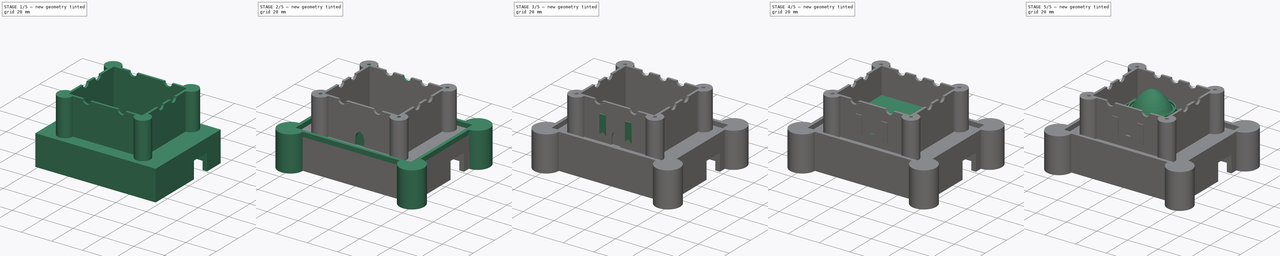
[diagram: build sequence overview — one tinted view per stage of 5, left to right]
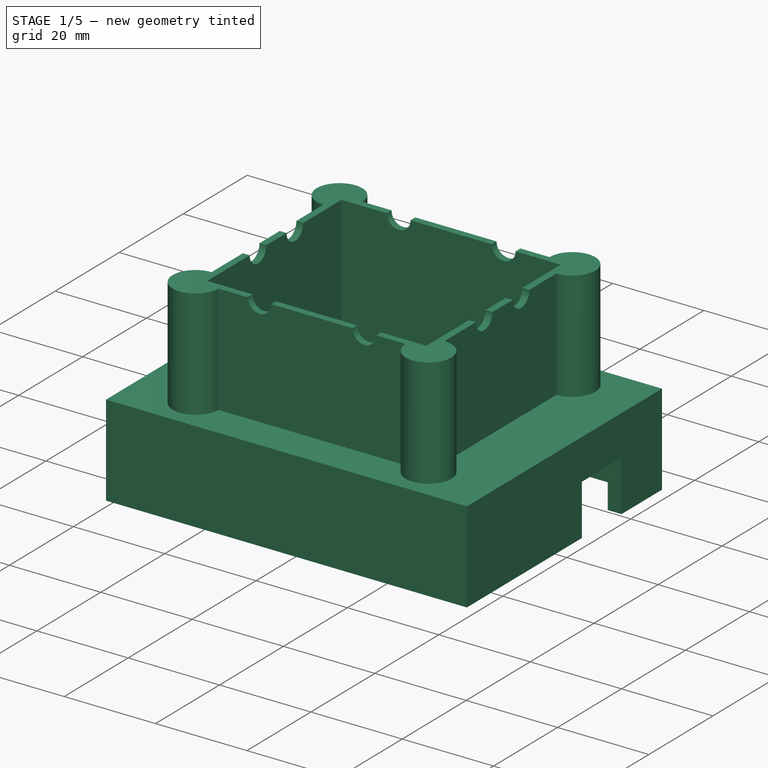
[diagram: stage 1 of 5 — iso view after this stage's code; geometry added in this stage tinted green]
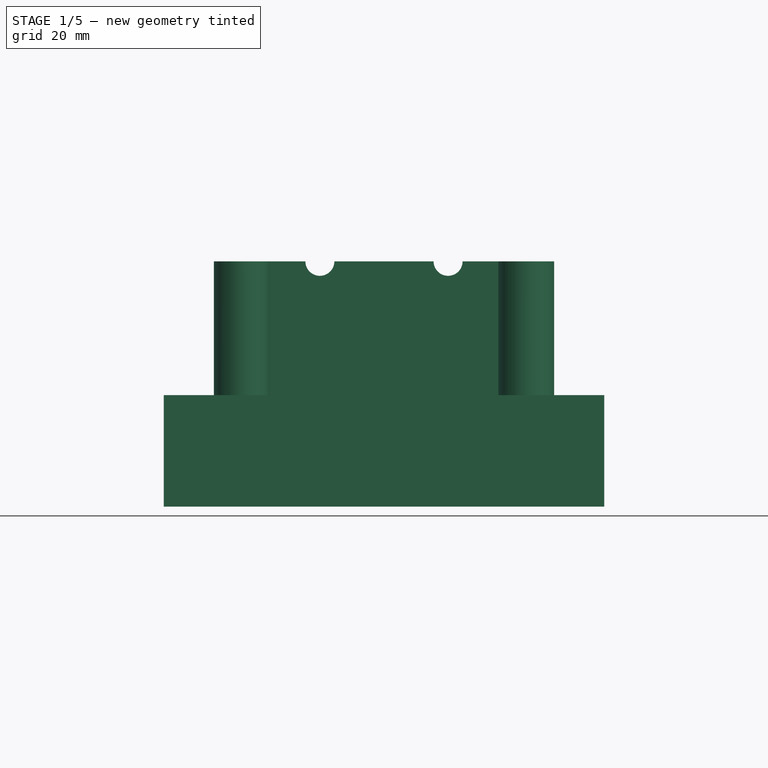
[diagram: stage 1 of 5 — front view after this stage's code; geometry added in this stage tinted green]
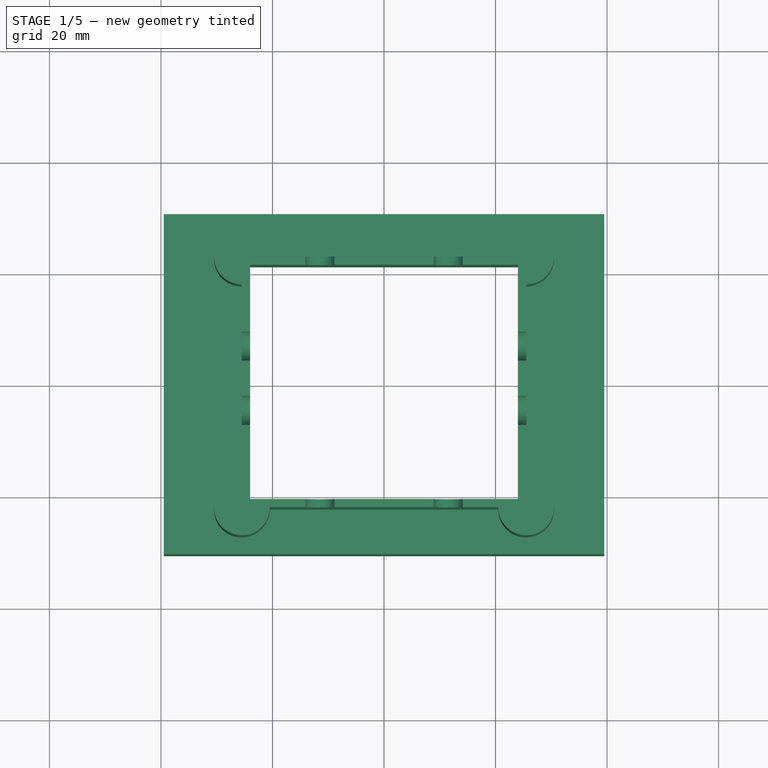
[diagram: stage 1 of 5 — top view after this stage's code; geometry added in this stage tinted green]
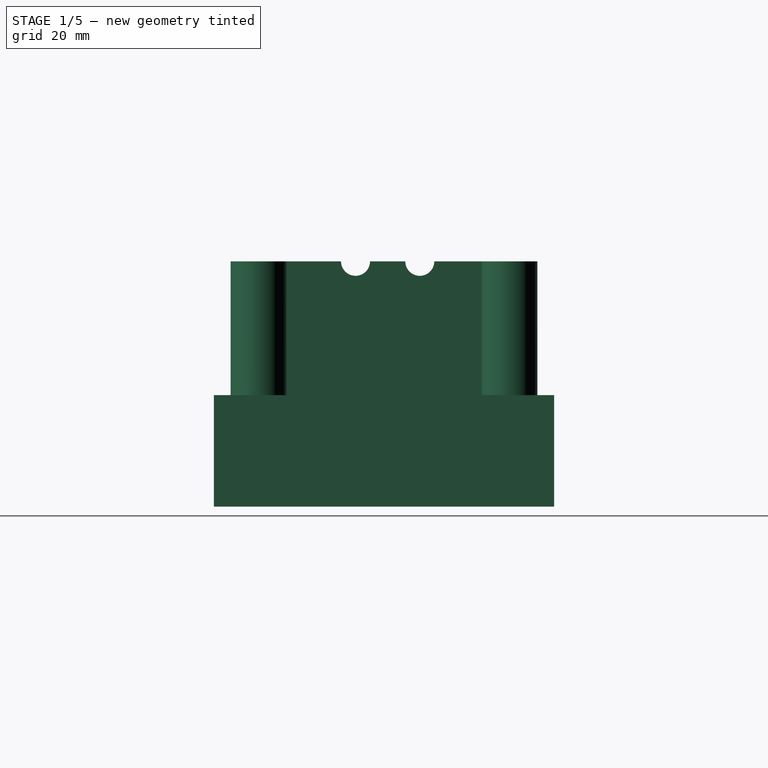
[diagram: stage 1 of 5 — right view after this stage's code; geometry added in this stage tinted green]
FCSTD DOCUMENT  (FreeCAD 0.20R29177 +426 (Git))
Label: multiplexer_case
License: All rights reserved
LicenseURL: http://en.wikipedia.org/wiki/All_rights_reserved
objects: Sketcher::SketchObject×32, PartDesign::Pocket×19, PartDesign::Pad×12, App::Part×4, PartDesign::Body×3, Part::Feature×2, Spreadsheet::Sheet×1, PartDesign::Revolution×1, PartDesign::Fillet×1
note: 103 computed .brp shape members not serialized (recipe doc carries the construction recipe); baked Part::Feature solids carry a one-line shape summary decoded from their .brp

FEATURE [Part::Feature] Feature  label="HMC321ALP4E"
  Placement = pos=(-17,20,0) rot=(0,0,1;0rad)
  shape: bbox 63.18 x 57.13 x 9.804 mm, 429 faces, 10 solids (baked)
FEATURE [App::Part] Part  label="HMC321ALP4E evaluation board"
  Group = -> [Feature]
  Origin = -> Origin
  Placement = pos=(-1,0.2,48.6) rot=(0,1,0;3.14159rad)
FEATURE [Part::Feature] Feature001  label="Arduino UNO001"
  Placement = pos=(8.5,73.5,-1.6e-14) rot=(1,0,0;1.5708rad)
  shape: bbox 74.8 x 53.05 x 15.3 mm, 1869 faces, 46 solids (baked)
FEATURE [App::Part] Part001  label="Arduino"
  Group = -> [Feature001]
  Origin = -> Origin001
  Placement = pos=(-1,-4,15.7) rot=(0,1,0;3.14159rad)
FEATURE [Sketcher::SketchObject] Sketch
  FullyConstrained = true
  MapMode = 5
  Support = -> [XY_Plane003]
  sketch-geometry (12):
    g0: LineSegment StartX=-36.5 StartY=27.5 StartZ=0 EndX=36.5 EndY=27.5 EndZ=0
    g1: LineSegment StartX=36.5 StartY=27.5 StartZ=0 EndX=36.5 EndY=-27.5 EndZ=0
    g2: LineSegment StartX=36.5 StartY=-27.5 StartZ=0 EndX=-36.5 EndY=-27.5 EndZ=0
    g3: LineSegment StartX=-36.5 StartY=-27.5 StartZ=0 EndX=-36.5 EndY=27.5 EndZ=0
    g4: LineSegment StartX=-39.5 StartY=30.5 StartZ=0 EndX=39.5 EndY=30.5 EndZ=0
    g5: LineSegment StartX=39.5 StartY=30.5 StartZ=0 EndX=39.5 EndY=-30.5 EndZ=0
    g6: LineSegment StartX=39.5 StartY=-30.5 StartZ=0 EndX=-39.5 EndY=-30.5 EndZ=0
    g7: LineSegment StartX=-39.5 StartY=-30.5 StartZ=0 EndX=-39.5 EndY=30.5 EndZ=0
    g8: LineSegment StartX=36.5 StartY=27.5 StartZ=0 EndX=39.5 EndY=30.5 EndZ=0
    g9: LineSegment StartX=36.5 StartY=-27.5 StartZ=0 EndX=39.5 EndY=-30.5 EndZ=0
    g10: LineSegment StartX=-36.5 StartY=-27.5 StartZ=0 EndX=-39.5 EndY=-30.5 EndZ=0
    g11: LineSegment StartX=-36.5 StartY=27.5 StartZ=0 EndX=-39.5 EndY=30.5 EndZ=0
  constraints (31):
    c: Coincident(g0,g1)
    c: Coincident(g1,g2)
    c: Coincident(g2,g3)
    c: Coincident(g3,g0)
    c: Horizontal(g0)
    c: Horizontal(g2)
    c: Vertical(g1)
    c: Vertical(g3)
    c: Symmetric(g0,g2,g-1)
    c: DistanceY(g3,g3) = 55
    c: DistanceX(g0,g0) = 73
    c: Coincident(g4,g5)
    c: Coincident(g5,g6)
    c: Coincident(g6,g7)
    c: Coincident(g7,g4)
    c: Horizontal(g4)
    c: Horizontal(g6)
    c: Vertical(g5)
    c: Vertical(g7)
    c: Coincident(g8,g0)
    c: Coincident(g8,g4)
    c: Coincident(g9,g1)
    c: Coincident(g9,g5)
    c: Coincident(g10,g2)
    c: Coincident(g10,g6)
    c: Coincident(g11,g0)
    c: Coincident(g11,g4)
    c: Equal(g11,g8)
    c: Equal(g8,g9)
    c: DistanceX(g0,g4) = 3
    c: DistanceY(g0,g4) = 3
FEATURE [App::Part] Part003  label="boards"
  Group = -> [Part,Part001]
  Origin = -> Origin004
  Placement = pos=(6,-1.3,-20) rot=(0,0,1;0rad)
FEATURE [PartDesign::Pad] Pad
  Direction = (1,1,1)
  Length = 17
  Length2 = 100
  Profile = -> Sketch
  Reversed = true
  Type = 0
FEATURE [Sketcher::SketchObject] Sketch001
  ExternalGeometry = -> [Pad]
  FullyConstrained = false
  MapMode = 5
  Placement = pos=(39.5,0,0) rot=(0.57735,0.57735,0.57735;2.0944rad)
  Support = -> [Pad]
  sketch-geometry (4):
    g0: LineSegment StartX=17.8355 StartY=-17 StartZ=0 EndX=5.4485 EndY=-17 EndZ=0
    g1: LineSegment StartX=5.4485 StartY=-17 StartZ=0 EndX=5.4485 EndY=-5.86817 EndZ=0
    g2: LineSegment StartX=5.4485 StartY=-5.86817 StartZ=0 EndX=17.8355 EndY=-5.86817 EndZ=0
    g3: LineSegment StartX=17.8355 StartY=-5.86817 StartZ=0 EndX=17.8355 EndY=-17 EndZ=0
  constraints (9):
    c: Coincident(g0,g1)
    c: Coincident(g1,g2)
    c: Coincident(g2,g3)
    c: Coincident(g3,g0)
    c: Horizontal(g0)
    c: Horizontal(g2)
    c: Vertical(g1)
    c: Vertical(g3)
    c: PointOnObject(g0,g-3)
FEATURE [PartDesign::Pocket] Pocket
  BaseFeature = -> Pad
  Direction = (1,1,1)
  Length = 5
  Length2 = 100
  Profile = -> Sketch001
  Type = 2
FEATURE [Sketcher::SketchObject] Sketch002
  ExternalGeometry = -> [Pocket]
  FullyConstrained = true
  MapMode = 5
  Support = -> [Pocket]
  sketch-geometry (4):
    g0: LineSegment StartX=39.5 StartY=30.5 StartZ=0 EndX=-39.5 EndY=30.5 EndZ=0
    g1: LineSegment StartX=-39.5 StartY=30.5 StartZ=0 EndX=-39.5 EndY=-30.5 EndZ=0
    g2: LineSegment StartX=-39.5 StartY=-30.5 StartZ=0 EndX=39.5 EndY=-30.5 EndZ=0
    g3: LineSegment StartX=39.5 StartY=-30.5 StartZ=0 EndX=39.5 EndY=30.5 EndZ=0
  constraints (10):
    c: Coincident(g0,g1)
    c: Coincident(g1,g2)
    c: Coincident(g2,g3)
    c: Coincident(g3,g0)
    c: Horizontal(g0)
    c: Horizontal(g2)
    c: Vertical(g1)
    c: Vertical(g3)
    c: Coincident(g0,g-3)
    c: Coincident(g1,g-4)
FEATURE [PartDesign::Pad] Pad001
  BaseFeature = -> Pocket
  Direction = (1,1,1)
  Length = 3
  Length2 = 100
  Profile = -> Sketch002
  Type = 0
FEATURE [Sketcher::SketchObject] Sketch003
  FullyConstrained = true
  MapMode = 5
  Placement = pos=(0,0,3) rot=(0,0,1;0rad)
  Support = -> [Pad001]
  sketch-geometry (8):
    g0: LineSegment StartX=20.5 StartY=22.5 StartZ=0 EndX=-20.5 EndY=22.5 EndZ=0
    g1: LineSegment StartX=-25.5 StartY=17.5 StartZ=0 EndX=-25.5 EndY=-17.5 EndZ=0
    g2: LineSegment StartX=-20.5 StartY=-22.5 StartZ=0 EndX=20.5 EndY=-22.5 EndZ=0
    g3: LineSegment StartX=25.5 StartY=-17.5 StartZ=0 EndX=25.5 EndY=17.5 EndZ=0
    g4: ArcOfCircle CenterX=25.5 CenterY=22.5 CenterZ=0 NormalX=0 NormalY=0 NormalZ=1 AngleXU=0 Radius=5 StartAngle=4.71239 EndAngle=9.42478
    g5: ArcOfCircle CenterX=25.5 CenterY=-22.5 CenterZ=0 NormalX=0 NormalY=0 NormalZ=1 AngleXU=0 Radius=5 StartAngle=3.14159 EndAngle=7.85398
    g6: ArcOfCircle CenterX=-25.5 CenterY=-22.5 CenterZ=0 NormalX=0 NormalY=0 NormalZ=1 AngleXU=0 Radius=5 StartAngle=1.5708 EndAngle=6.28319
    g7: ArcOfCircle CenterX=-25.5 CenterY=22.5 CenterZ=0 NormalX=0 NormalY=0 NormalZ=1 AngleXU=0 Radius=5 StartAngle=-9e-16 EndAngle=4.71239
  constraints (27):
    c: Horizontal(g0)
    c: Horizontal(g2)
    c: Vertical(g1)
    c: Vertical(g3)
    c: Coincident(g3,g4)
    c: Coincident(g0,g4)
    c: Coincident(g7,g0)
    c: Coincident(g7,g1)
    c: Coincident(g1,g6)
    c: Coincident(g2,g6)
    c: Coincident(g5,g2)
    c: Coincident(g5,g3)
    c: Equal(g4,g7)
    c: Equal(g7,g5)
    c: Equal(g5,g6)
    c: Perpendicular(g7,g0)
    c: Perpendicular(g7,g1)
    c: Symmetric(g4,g6,g-1)
    c: Perpendicular(g4,g0)
    c: Perpendicular(g4,g3)
    c: Perpendicular(g5,g3)
    c: Perpendicular(g5,g2)
    c: Perpendicular(g6,g2)
    c: Perpendicular(g6,g1)
    c: DistanceX(g7,g4) = 51
    c: DistanceY(g6,g7) = 45
    c: Radius(g4) = 5
FEATURE [PartDesign::Pad] Pad002
  BaseFeature = -> Pad001
  Direction = (1,1,1)
  Length = 24
  Length2 = 100
  Profile = -> Sketch003
  Type = 0
FEATURE [Sketcher::SketchObject] Sketch004
  FullyConstrained = true
  MapMode = 5
  Placement = pos=(0,0,27) rot=(0,0,1;0rad)
  Support = -> [Pad002]
  sketch-geometry (4):
    g0: LineSegment StartX=24 StartY=21 StartZ=0 EndX=-24 EndY=21 EndZ=0
    g1: LineSegment StartX=-24 StartY=21 StartZ=0 EndX=-24 EndY=-21 EndZ=0
    g2: LineSegment StartX=-24 StartY=-21 StartZ=0 EndX=24 EndY=-21 EndZ=0
    g3: LineSegment StartX=24 StartY=-21 StartZ=0 EndX=24 EndY=21 EndZ=0
  constraints (11):
    c: Coincident(g0,g1)
    c: Coincident(g1,g2)
    c: Coincident(g2,g3)
    c: Coincident(g3,g0)
    c: Horizontal(g0)
    c: Horizontal(g2)
    c: Vertical(g1)
    c: Vertical(g3)
    c: Symmetric(g0,g1,g-1)
    c: DistanceX(g0,g0) = 48
    c: DistanceY(g1,g1) = 42
FEATURE [PartDesign::Pocket] Pocket001
  BaseFeature = -> Pad002
  Direction = (1,1,1)
  Length = 14
  Length2 = 100
  Profile = -> Sketch004
  Type = 1
FEATURE [Sketcher::SketchObject] Sketch005
  ExternalGeometry = -> [Pocket001]
  FullyConstrained = false
  MapMode = 5
  Placement = pos=(25.5,0,0) rot=(0.57735,0.57735,0.57735;2.0944rad)
  Support = -> [Pocket001]
  expr: Constraints[3] = <<parameters>>.SMA_HOLE_DIAMETER
  sketch-geometry (2):
    g0: Circle CenterX=-5.10541 CenterY=27 CenterZ=0 NormalX=0 NormalY=0 NormalZ=1 AngleXU=0 Radius=2.6
    g1: Circle CenterX=6.42069 CenterY=27 CenterZ=0 NormalX=0 NormalY=0 NormalZ=1 AngleXU=0 Radius=2.6
  constraints (4):
    c: PointOnObject(g0,g-3)
    c: PointOnObject(g1,g-3)
    c: Equal(g1,g0)
    c: Diameter(g0) = 5.2
FEATURE [Spreadsheet::Sheet] Spreadsheet  label="parameters"
  cells = A1=SMA hole diameter (mm); B1(SMA_HOLE_DIAMETER)=5.2; A2=Screw hole diameter (mm); B2(SCREW_HOLE_DIAMETER)=2; A3=Screw head hole diameter (mm); B3(SCREW_HEAD_HOLE_DIAMETER)=4; A4=Screw head hole depth (mm); B4(SCREW_HEAD_HOLE_DEPHT)=2
FEATURE [PartDesign::Pocket] Pocket002
  BaseFeature = -> Pocket001
  Direction = (1,1,1)
  Length = 5
  Length2 = 100
  Profile = -> Sketch005
  Type = 1
FEATURE [Sketcher::SketchObject] Sketch006
  ExternalGeometry = -> [Pocket002]
  FullyConstrained = false
  MapMode = 5
  Placement = pos=(0,-22.5,0) rot=(1,0,0;1.5708rad)
  Support = -> [Pocket002]
  expr: Constraints[3] = <<parameters>>.SMA_HOLE_DIAMETER
  sketch-geometry (2):
    g0: Circle CenterX=-11.5016 CenterY=27 CenterZ=0 NormalX=0 NormalY=0 NormalZ=1 AngleXU=0 Radius=2.6
    g1: Circle CenterX=11.4914 CenterY=27 CenterZ=0 NormalX=0 NormalY=0 NormalZ=1 AngleXU=0 Radius=2.6
  constraints (4):
    c: PointOnObject(g0,g-3)
    c: PointOnObject(g1,g-3)
    c: Equal(g1,g0)
    c: Diameter(g0) = 5.2
FEATURE [PartDesign::Pocket] Pocket003
  BaseFeature = -> Pocket002
  Direction = (1,1,1)
  Length = 5
  Length2 = 100
  Profile = -> Sketch006
  Type = 1
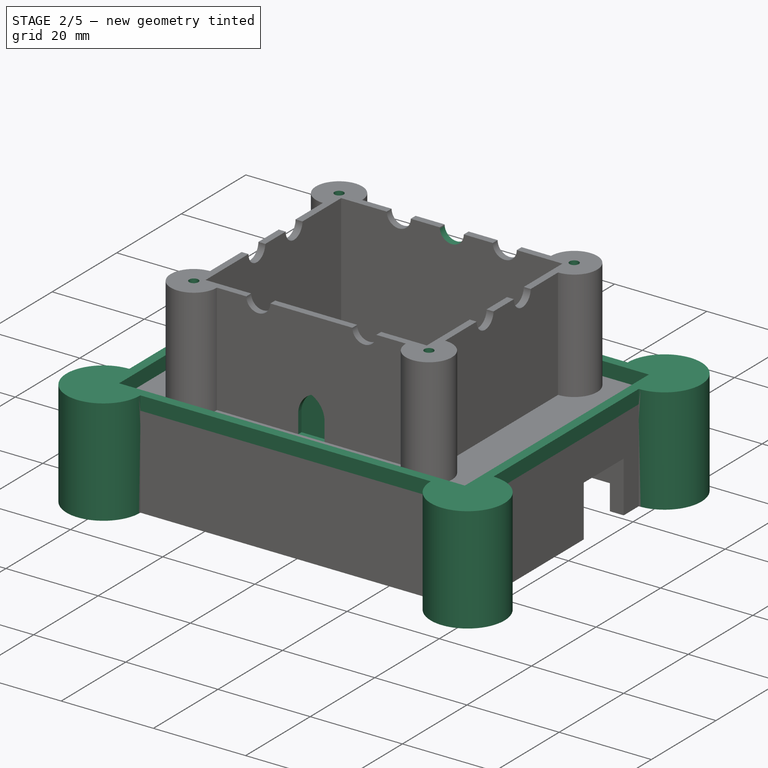
[diagram: stage 2 of 5 — iso view after this stage's code; geometry added in this stage tinted green]
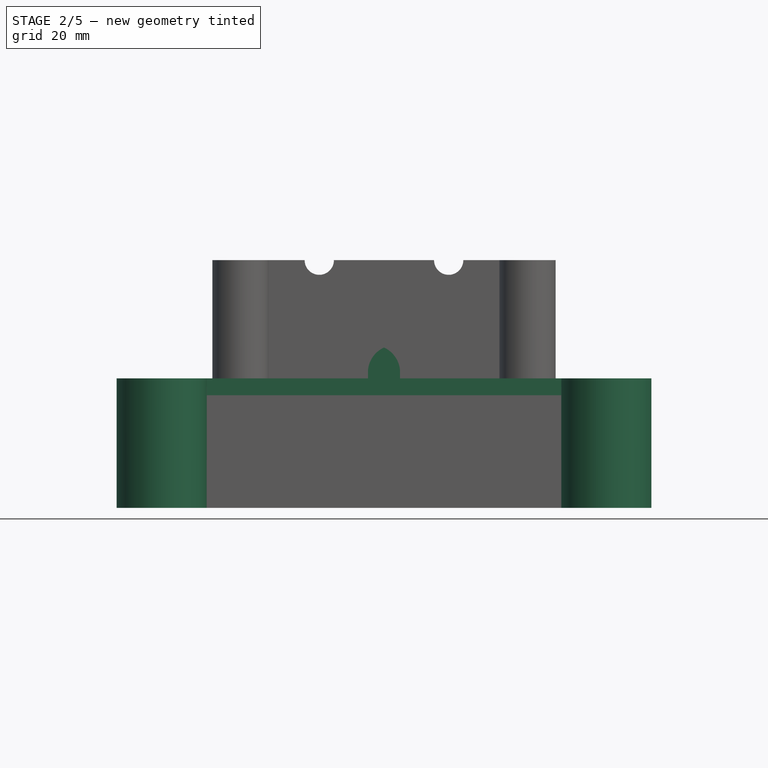
[diagram: stage 2 of 5 — front view after this stage's code; geometry added in this stage tinted green]
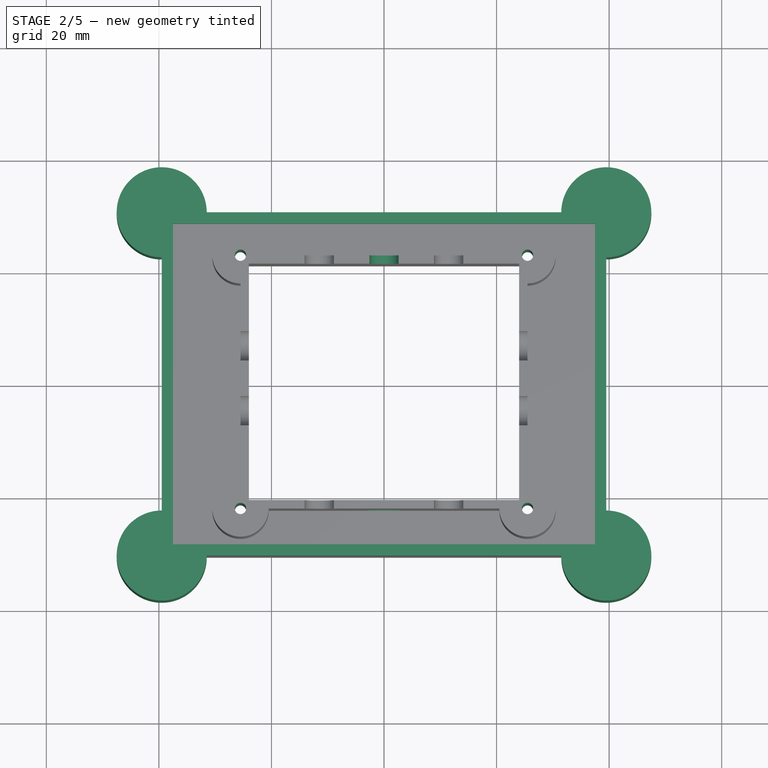
[diagram: stage 2 of 5 — top view after this stage's code; geometry added in this stage tinted green]
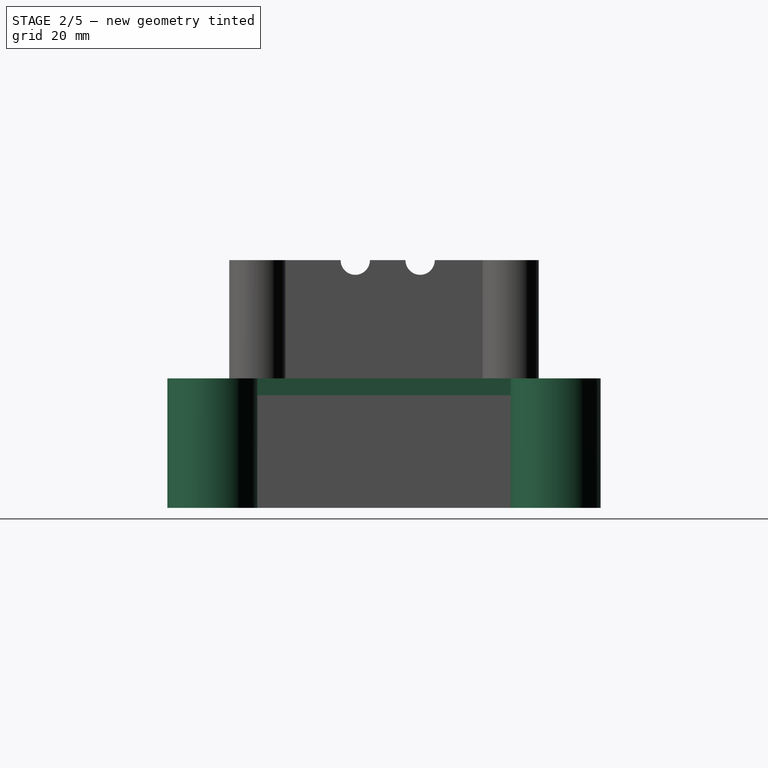
[diagram: stage 2 of 5 — right view after this stage's code; geometry added in this stage tinted green]
FEATURE [Sketcher::SketchObject] Sketch007
  ExternalGeometry = -> [Pocket003]
  FullyConstrained = true
  MapMode = 5
  Placement = pos=(0,22.5,0) rot=(0,0.707107,0.707107;3.14159rad)
  Support = -> [Pocket003]
  expr: Constraints[2] = <<parameters>>.SMA_HOLE_DIAMETER
  sketch-geometry (1):
    g0: Circle CenterX=0 CenterY=27 CenterZ=0 NormalX=0 NormalY=0 NormalZ=1 AngleXU=0 Radius=2.6
  constraints (3):
    c: PointOnObject(g0,g-3)
    c: PointOnObject(g0,g-2)
    c: Diameter(g0) = 5.2
FEATURE [PartDesign::Pocket] Pocket004
  BaseFeature = -> Pocket003
  Direction = (1,1,1)
  Length = 5
  Length2 = 100
  Profile = -> Sketch007
  Type = 2
FEATURE [Sketcher::SketchObject] Sketch014
  FullyConstrained = true
  MapMode = 5
  Placement = pos=(0,0,27) rot=(0,0,1;0rad)
  Support = -> [Pocket004]
  expr: Constraints[18] = <<parameters>>.SCREW_HOLE_DIAMETER
  sketch-geometry (8):
    g0: LineSegment StartX=25.5 StartY=22.5 StartZ=0 EndX=-25.5 EndY=22.5 EndZ=0
    g1: LineSegment StartX=-25.5 StartY=22.5 StartZ=0 EndX=-25.5 EndY=-22.5 EndZ=0
    g2: LineSegment StartX=-25.5 StartY=-22.5 StartZ=0 EndX=25.5 EndY=-22.5 EndZ=0
    g3: LineSegment StartX=25.5 StartY=-22.5 StartZ=0 EndX=25.5 EndY=22.5 EndZ=0
    g4: Circle CenterX=25.5 CenterY=22.5 CenterZ=0 NormalX=0 NormalY=0 NormalZ=1 AngleXU=0 Radius=1
    g5: Circle CenterX=25.5 CenterY=-22.5 CenterZ=0 NormalX=0 NormalY=0 NormalZ=1 AngleXU=0 Radius=1
    g6: Circle CenterX=-25.5 CenterY=-22.5 CenterZ=0 NormalX=0 NormalY=0 NormalZ=1 AngleXU=0 Radius=1
    g7: Circle CenterX=-25.5 CenterY=22.5 CenterZ=0 NormalX=0 NormalY=0 NormalZ=1 AngleXU=0 Radius=1
  constraints (19):
    c: Coincident(g0,g1)
    c: Coincident(g1,g2)
    c: Coincident(g2,g3)
    c: Coincident(g3,g0)
    c: Horizontal(g0)
    c: Horizontal(g2)
    c: Vertical(g1)
    c: Vertical(g3)
    c: Symmetric(g0,g1,g-1)
    c: DistanceY(g1,g1) = 45
    c: DistanceX(g0,g0) = 51
    c: Coincident(g4,g0)
    c: Coincident(g5,g2)
    c: Coincident(g6,g1)
    c: Coincident(g7,g0)
    c: Equal(g7,g4)
    c: Equal(g4,g5)
    c: Equal(g5,g6)
    c: Diameter(g4) = 2
FEATURE [PartDesign::Pocket] Pocket010
  BaseFeature = -> Pocket004
  Direction = (1,1,1)
  Length = 5
  Length2 = 100
  Profile = -> Sketch014
  Type = 1
FEATURE [Sketcher::SketchObject] Sketch018
  ExternalGeometry = -> [Pocket010]
  FullyConstrained = true
  MapMode = 5
  Placement = pos=(0,0,3) rot=(0,0,1;0rad)
  Support = -> [Pocket010]
  sketch-geometry (12):
    g0: LineSegment StartX=39.5 StartY=30.5 StartZ=0 EndX=-39.5 EndY=30.5 EndZ=0
    g1: LineSegment StartX=-39.5 StartY=30.5 StartZ=0 EndX=-39.5 EndY=-30.5 EndZ=0
    g2: LineSegment StartX=-39.5 StartY=-30.5 StartZ=0 EndX=39.5 EndY=-30.5 EndZ=0
    g3: LineSegment StartX=39.5 StartY=-30.5 StartZ=0 EndX=39.5 EndY=30.5 EndZ=0
    g4: LineSegment StartX=37.5 StartY=28.5 StartZ=0 EndX=-37.5 EndY=28.5 EndZ=0
    g5: LineSegment StartX=-37.5 StartY=28.5 StartZ=0 EndX=-37.5 EndY=-28.5 EndZ=0
    g6: LineSegment StartX=-37.5 StartY=-28.5 StartZ=0 EndX=37.5 EndY=-28.5 EndZ=0
    g7: LineSegment StartX=37.5 StartY=-28.5 StartZ=0 EndX=37.5 EndY=28.5 EndZ=0
    g8: LineSegment StartX=37.5 StartY=28.5 StartZ=0 EndX=39.5 EndY=30.5 EndZ=0
    g9: LineSegment StartX=37.5 StartY=-28.5 StartZ=0 EndX=39.5 EndY=-30.5 EndZ=0
    g10: LineSegment StartX=-37.5 StartY=-28.5 StartZ=0 EndX=-39.5 EndY=-30.5 EndZ=0
    g11: LineSegment StartX=-37.5 StartY=28.5 StartZ=0 EndX=-39.5 EndY=30.5 EndZ=0
  constraints (30):
    c: Coincident(g0,g1)
    c: Coincident(g1,g2)
    c: Coincident(g2,g3)
    c: Coincident(g3,g0)
    c: Horizontal(g0)
    c: Horizontal(g2)
    c: Vertical(g1)
    c: Vertical(g3)
    c: Coincident(g0,g-3)
    c: Coincident(g1,g-4)
    c: Coincident(g4,g5)
    c: Coincident(g5,g6)
    c: Coincident(g6,g7)
    c: Coincident(g7,g4)
    c: Horizontal(g4)
    c: Horizontal(g6)
    c: Vertical(g5)
    c: Vertical(g7)
    c: Coincident(g8,g4)
    c: Coincident(g8,g0)
    c: Coincident(g9,g6)
    c: Coincident(g9,g2)
    c: Coincident(g10,g5)
    c: Coincident(g10,g1)
    c: Coincident(g11,g4)
    c: Coincident(g11,g0)
    c: Equal(g10,g11)
    c: Equal(g11,g8)
    c: DistanceX(g4,g0) = 2
    c: DistanceY(g1,g5) = 2
FEATURE [Sketcher::SketchObject] Sketch019
  ExternalGeometry = -> [Pocket010]
  FullyConstrained = false
  MapMode = 5
  Placement = pos=(0,-22.5,0) rot=(1,0,0;1.5708rad)
  Support = -> [Pocket010]
  sketch-geometry (6):
    g0: LineSegment StartX=2.8435 StartY=7.47539 StartZ=0 EndX=2.8435 EndY=3 EndZ=0
    g1: LineSegment StartX=2.8435 StartY=3 StartZ=0 EndX=-2.8435 EndY=3 EndZ=0
    g2: LineSegment StartX=-2.8435 StartY=3 StartZ=0 EndX=-2.8435 EndY=7.47539 EndZ=0
    g3: GeomPoint X=0 Y=7.47539 Z=0
    g4: ArcOfCircle CenterX=-2.05083 CenterY=7.01637 CenterZ=0 NormalX=0 NormalY=0 NormalZ=1 AngleXU=0 Radius=4.91581 StartAngle=0.0935137 EndAngle=1.14044
    g5: ArcOfCircle CenterX=2.05083 CenterY=7.01637 CenterZ=0 NormalX=0 NormalY=0 NormalZ=1 AngleXU=0 Radius=4.91581 StartAngle=2.00115 EndAngle=3.04808
  constraints (14):
    c: Coincident(g0,g1)
    c: Coincident(g1,g2)
    c: Horizontal(g1)
    c: Vertical(g0)
    c: Vertical(g2)
    c: PointOnObject(g0,g-3)
    c: PointOnObject(g3,g-2)
    c: Symmetric(g0,g2,g3)
    c: Horizontal(g0,g2)
    c: Coincident(g4,g0)
    c: PointOnObject(g4,g-2)
    c: Coincident(g5,g2)
    c: Coincident(g5,g4)
    c: Equal(g5,g4)
FEATURE [PartDesign::Pocket] Pocket013
  BaseFeature = -> Pocket010
  Direction = (1,1,1)
  Length = 1
  Length2 = 100
  Profile = -> Sketch019
  Type = 0
FEATURE [PartDesign::Pad] Pad004
  BaseFeature = -> Pocket013
  Direction = (1,1,1)
  Length = 3
  Length2 = 100
  Profile = -> Sketch018
  Type = 0
FEATURE [Sketcher::SketchObject] Sketch027
  FullyConstrained = false
  MapMode = 5
  Placement = pos=(0,0,0) rot=(1,0,0;3.14159rad)
  Support = -> [Pad004]
  expr: Constraints[11] = <<parameters>>.SCREW_HOLE_DIAMETER
  sketch-geometry (8):
    g0: Circle CenterX=-32.7916 CenterY=18.9356 CenterZ=0 NormalX=0 NormalY=0 NormalZ=1 AngleXU=0 Radius=2
    g1: Circle CenterX=19.3869 CenterY=24.1139 CenterZ=0 NormalX=0 NormalY=0 NormalZ=1 AngleXU=0 Radius=2
    g2: Circle CenterX=18.0043 CenterY=-24.1773 CenterZ=0 NormalX=0 NormalY=0 NormalZ=1 AngleXU=0 Radius=2
    g3: Circle CenterX=-32.7966 CenterY=-9.02627 CenterZ=0 NormalX=0 NormalY=0 NormalZ=1 AngleXU=0 Radius=2
    g4: Circle CenterX=-32.7916 CenterY=18.9356 CenterZ=0 NormalX=0 NormalY=0 NormalZ=1 AngleXU=0 Radius=1
    g5: Circle CenterX=19.3869 CenterY=24.1139 CenterZ=0 NormalX=0 NormalY=0 NormalZ=1 AngleXU=0 Radius=1
    g6: Circle CenterX=-32.7966 CenterY=-9.02627 CenterZ=0 NormalX=0 NormalY=0 NormalZ=1 AngleXU=0 Radius=1
    g7: Circle CenterX=18.0043 CenterY=-24.1773 CenterZ=0 NormalX=0 NormalY=0 NormalZ=1 AngleXU=0 Radius=1
  constraints (12):
    c: Equal(g3,g0)
    c: Equal(g0,g1)
    c: Equal(g1,g2)
    c: Diameter(g3) = 4
    c: Coincident(g4,g0)
    c: Coincident(g5,g1)
    c: Coincident(g6,g3)
    c: Coincident(g7,g2)
    c: Equal(g6,g7)
    c: Equal(g7,g4)
    c: Equal(g4,g5)
    c: Diameter(g6) = 2
FEATURE [PartDesign::Pad] Pad008
  BaseFeature = -> Pad004
  Direction = (1,1,1)
  Length = 4.5
  Length2 = 100
  Profile = -> Sketch027
  Type = 0
FEATURE [Sketcher::SketchObject] Sketch028
  ExternalGeometry = -> [Pad008]
  FullyConstrained = true
  MapMode = 5
  Placement = pos=(0,0,-17) rot=(1,0,0;3.14159rad)
  Support = -> [Pad008]
  sketch-geometry (12):
    g0: ArcOfCircle CenterX=39.5 CenterY=30.5 CenterZ=0 NormalX=0 NormalY=0 NormalZ=1 AngleXU=0 Radius=8 StartAngle=4.71239 EndAngle=9.42478
    g1: ArcOfCircle CenterX=-39.5 CenterY=30.5 CenterZ=0 NormalX=0 NormalY=0 NormalZ=1 AngleXU=0 Radius=8 StartAngle=0 EndAngle=4.71239
    g2: ArcOfCircle CenterX=-39.5 CenterY=-30.5 CenterZ=0 NormalX=0 NormalY=0 NormalZ=1 AngleXU=0 Radius=8 StartAngle=1.5708 EndAngle=6.28319
    g3: ArcOfCircle CenterX=39.5 CenterY=-30.5 CenterZ=0 NormalX=0 NormalY=0 NormalZ=1 AngleXU=0 Radius=8 StartAngle=3.14159 EndAngle=7.85398
    g4: LineSegment StartX=-39.5 StartY=30.5 StartZ=0 EndX=-31.5 EndY=30.5 EndZ=0
    g5: LineSegment StartX=39.5 StartY=30.5 StartZ=0 EndX=39.5 EndY=22.5 EndZ=0
    g6: LineSegment StartX=39.5 StartY=-30.5 StartZ=0 EndX=31.5 EndY=-30.5 EndZ=0
    g7: LineSegment StartX=-39.5 StartY=-30.5 StartZ=0 EndX=-39.5 EndY=-22.5 EndZ=0
    g8: LineSegment StartX=31.5 StartY=30.5 StartZ=0 EndX=39.5 EndY=30.5 EndZ=0
    g9: LineSegment StartX=39.5 StartY=-22.5 StartZ=0 EndX=39.5 EndY=-30.5 EndZ=0
    g10: LineSegment StartX=-31.5 StartY=-30.5 StartZ=0 EndX=-39.5 EndY=-30.5 EndZ=0
    g11: LineSegment StartX=-39.5 StartY=22.5 StartZ=0 EndX=-39.5 EndY=30.5 EndZ=0
  constraints (30):
    c: Coincident(g0,g-3)
    c: Coincident(g1,g-3)
    c: Coincident(g2,g-4)
    c: Coincident(g3,g-4)
    c: Coincident(g8,g5)
    c: Coincident(g9,g6)
    c: Coincident(g10,g7)
    c: Coincident(g11,g4)
    c: Horizontal(g4)
    c: Horizontal(g6)
    c: Vertical(g5)
    c: Vertical(g7)
    c: Coincident(g4,g1)
    c: Coincident(g9,g3)
    c: Tangent(g4,g8)
    c: Coincident(g0,g8)
    c: Coincident(g5,g0)
    c: Tangent(g5,g9)
    c: Coincident(g3,g9)
    c: Coincident(g6,g3)
    c: Tangent(g6,g10)
    c: Coincident(g2,g10)
    c: Coincident(g7,g2)
    c: Tangent(g7,g11)
    c: Coincident(g1,g4)
    c: Coincident(g1,g11)
    c: Equal(g0,g3)
    c: Equal(g3,g1)
    c: Equal(g1,g2)
    c: Diameter(g0) = 16
FEATURE [PartDesign::Pad] Pad009
  BaseFeature = -> Pad008
  Direction = (1,1,1)
  Length = 10
  Length2 = 100
  Profile = -> Sketch028
  Reversed = true
  Type = 3
  UpToFace = -> Pad008 [Face20]
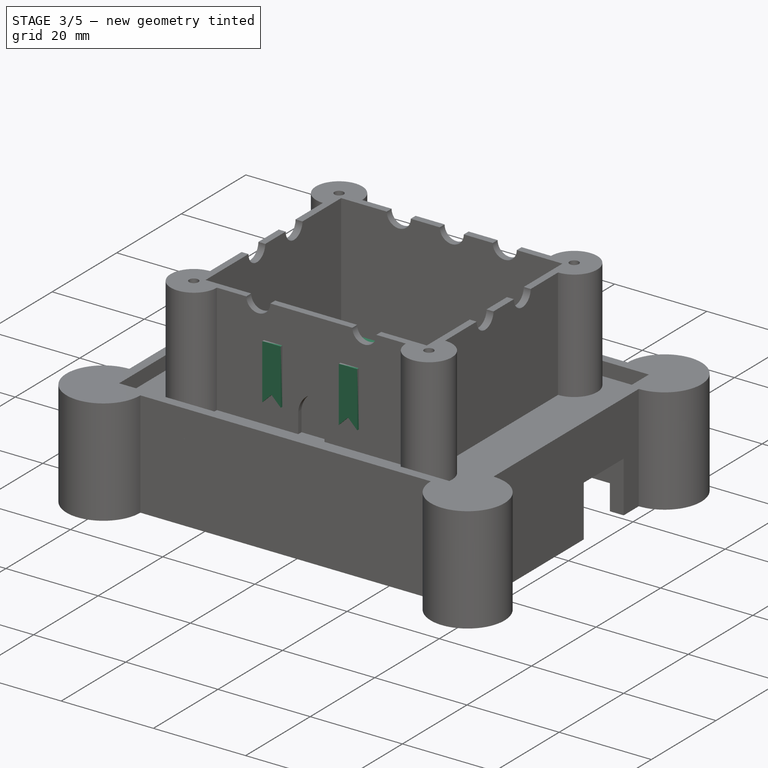
[diagram: stage 3 of 5 — iso view after this stage's code; geometry added in this stage tinted green]
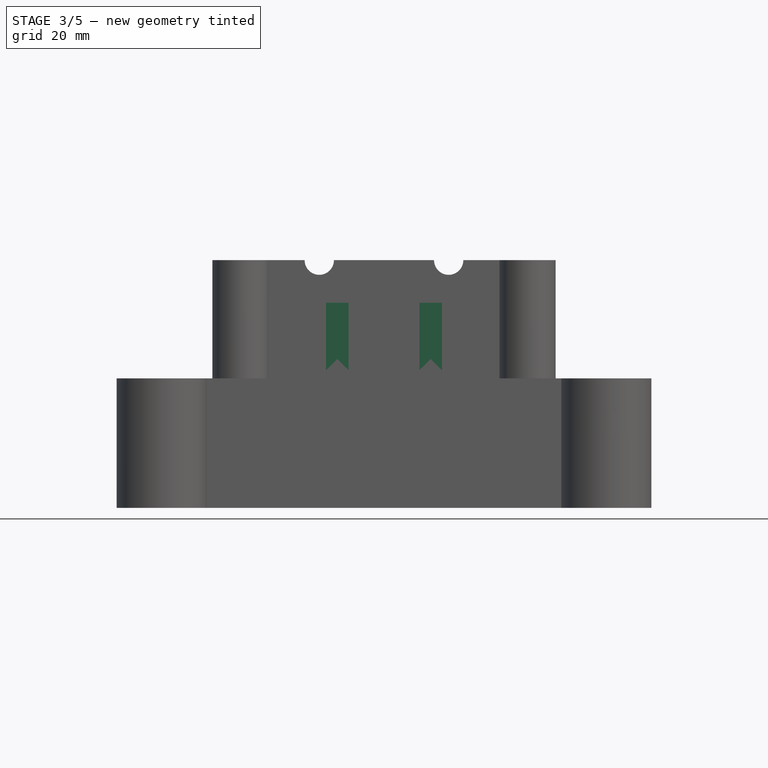
[diagram: stage 3 of 5 — front view after this stage's code; geometry added in this stage tinted green]
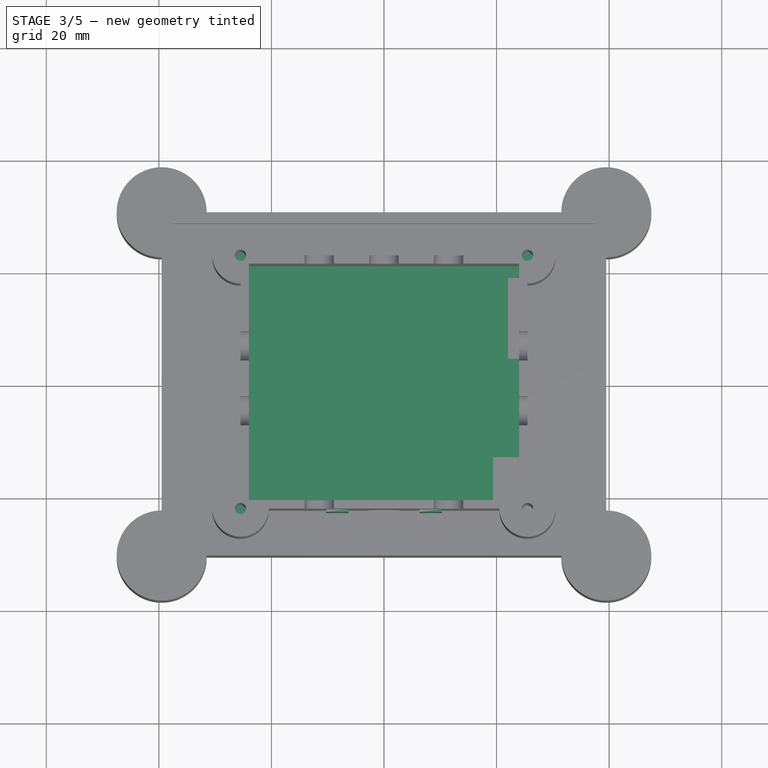
[diagram: stage 3 of 5 — top view after this stage's code; geometry added in this stage tinted green]
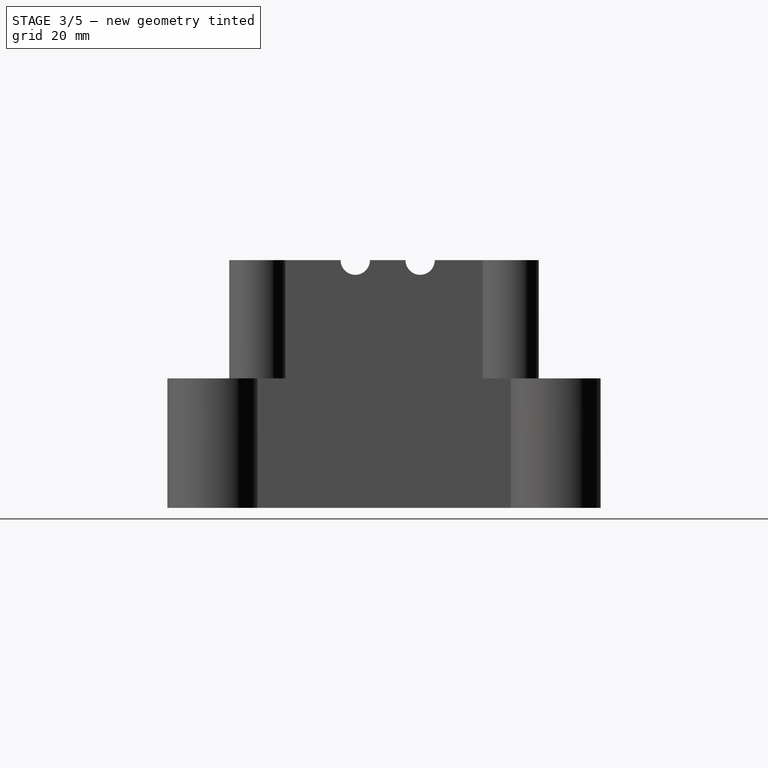
[diagram: stage 3 of 5 — right view after this stage's code; geometry added in this stage tinted green]
FEATURE [PartDesign::Body] Body001  label="cover_top"
  Group = -> [Sketch008,Pad003,Sketch009,Pocket005,Sketch010,Pocket006,Sketch011,Pocket007,Sketch012,Pocket008,Sketch013,Pocket009,Sketch015,Pocket011,Sketch016,Pocket012,Sketch020,Pad005,Sketch021,Pocket014,Sketch023,Revolution,Fillet]
  Origin = -> Origin005
  Placement = pos=(0,0,27) rot=(0,0,1;0rad)
  Tip = -> Fillet
FEATURE [Sketcher::SketchObject] Sketch024
  FullyConstrained = true
  MapMode = 5
  Support = -> [XY_Plane006]
  sketch-geometry (4):
    g0: LineSegment StartX=39.5 StartY=30.5 StartZ=0 EndX=-39.5 EndY=30.5 EndZ=0
    g1: LineSegment StartX=-39.5 StartY=30.5 StartZ=0 EndX=-39.5 EndY=-30.5 EndZ=0
    g2: LineSegment StartX=-39.5 StartY=-30.5 StartZ=0 EndX=39.5 EndY=-30.5 EndZ=0
    g3: LineSegment StartX=39.5 StartY=-30.5 StartZ=0 EndX=39.5 EndY=30.5 EndZ=0
  constraints (11):
    c: Coincident(g0,g1)
    c: Coincident(g1,g2)
    c: Coincident(g2,g3)
    c: Coincident(g3,g0)
    c: Horizontal(g0)
    c: Horizontal(g2)
    c: Vertical(g1)
    c: Vertical(g3)
    c: Symmetric(g0,g1,g-1)
    c: DistanceX(g0,g0) = 79
    c: DistanceY(g1,g1) = 61
FEATURE [PartDesign::Pad] Pad006
  Direction = (1,1,1)
  Length = 4
  Length2 = 100
  Profile = -> Sketch024
  Reversed = true
  Type = 0
FEATURE [Sketcher::SketchObject] Sketch025
  FullyConstrained = true
  MapMode = 5
  Support = -> [Pad006]
  sketch-geometry (4):
    g0: LineSegment StartX=36.25 StartY=27.25 StartZ=0 EndX=-36.25 EndY=27.25 EndZ=0
    g1: LineSegment StartX=-36.25 StartY=27.25 StartZ=0 EndX=-36.25 EndY=-27.25 EndZ=0
    g2: LineSegment StartX=-36.25 StartY=-27.25 StartZ=0 EndX=36.25 EndY=-27.25 EndZ=0
    g3: LineSegment StartX=36.25 StartY=-27.25 StartZ=0 EndX=36.25 EndY=27.25 EndZ=0
  constraints (11):
    c: Coincident(g0,g1)
    c: Coincident(g1,g2)
    c: Coincident(g2,g3)
    c: Coincident(g3,g0)
    c: Horizontal(g0)
    c: Horizontal(g2)
    c: Vertical(g1)
    c: Vertical(g3)
    c: Symmetric(g0,g1,g-1)
    c: DistanceX(g0,g0) = 72.5
    c: DistanceY(g1,g1) = 54.5
FEATURE [PartDesign::Pad] Pad007
  BaseFeature = -> Pad006
  Direction = (1,1,1)
  Length = 1
  Length2 = 100
  Profile = -> Sketch025
  Type = 0
FEATURE [Sketcher::SketchObject] Sketch026
  ExternalGeometry = -> [Pad007]
  FullyConstrained = false
  MapMode = 5
  Placement = pos=(0,0,1) rot=(0,0,1;0rad)
  Support = -> [Pad007]
  sketch-geometry (8):
    g0: LineSegment StartX=36.25 StartY=18.973 StartZ=0 EndX=22.026 EndY=18.973 EndZ=0
    g1: LineSegment StartX=22.026 StartY=18.973 StartZ=0 EndX=22.026 EndY=4.55851 EndZ=0
    g2: LineSegment StartX=22.026 StartY=4.55851 StartZ=0 EndX=36.25 EndY=4.55851 EndZ=0
    g3: LineSegment StartX=36.25 StartY=4.55851 StartZ=0 EndX=36.25 EndY=18.973 EndZ=0
    g4: LineSegment StartX=36.25 StartY=-12.903 StartZ=0 EndX=19.3991 EndY=-12.903 EndZ=0
    g5: LineSegment StartX=19.3991 StartY=-12.903 StartZ=0 EndX=19.3991 EndY=-24.0482 EndZ=0
    g6: LineSegment StartX=19.3991 StartY=-24.0482 StartZ=0 EndX=36.25 EndY=-24.0482 EndZ=0
    g7: LineSegment StartX=36.25 StartY=-24.0482 StartZ=0 EndX=36.25 EndY=-12.903 EndZ=0
  constraints (18):
    c: Coincident(g0,g1)
    c: Coincident(g1,g2)
    c: Coincident(g2,g3)
    c: Coincident(g3,g0)
    c: Horizontal(g0)
    c: Horizontal(g2)
    c: Vertical(g1)
    c: Vertical(g3)
    c: PointOnObject(g0,g-3)
    c: Coincident(g4,g5)
    c: Coincident(g5,g6)
    c: Coincident(g6,g7)
    c: Coincident(g7,g4)
    c: Horizontal(g4)
    c: Horizontal(g6)
    c: Vertical(g5)
    c: Vertical(g7)
    c: PointOnObject(g4,g-3)
FEATURE [PartDesign::Pocket] Pocket015
  BaseFeature = -> Pad007
  Direction = (1,1,1)
  Length = 0
  Length2 = 100
  Profile = -> Sketch026
  Type = 3
  UpToFace = -> Pad007 [Face4]
FEATURE [Sketcher::SketchObject] Sketch029
  ExternalGeometry = -> [Pocket015]
  FullyConstrained = true
  MapMode = 5
  Placement = pos=(0,0,-4) rot=(1,0,0;3.14159rad)
  Support = -> [Pocket015]
  sketch-geometry (4):
    g0: Circle CenterX=39.5 CenterY=30.5 CenterZ=0 NormalX=0 NormalY=0 NormalZ=1 AngleXU=0 Radius=8
    g1: Circle CenterX=39.5 CenterY=-30.5 CenterZ=0 NormalX=0 NormalY=0 NormalZ=1 AngleXU=0 Radius=8
    g2: Circle CenterX=-39.5 CenterY=-30.5 CenterZ=0 NormalX=0 NormalY=0 NormalZ=1 AngleXU=0 Radius=8
    g3: Circle CenterX=-39.5 CenterY=30.5 CenterZ=0 NormalX=0 NormalY=0 NormalZ=1 AngleXU=0 Radius=8
  constraints (8):
    c: Coincident(g0,g-3)
    c: Coincident(g1,g-6)
    c: Coincident(g2,g-5)
    c: Coincident(g3,g-4)
    c: Equal(g2,g3)
    c: Equal(g3,g0)
    c: Equal(g0,g1)
    c: Diameter(g0) = 16
FEATURE [PartDesign::Pad] Pad010
  BaseFeature = -> Pocket015
  Direction = (1,1,1)
  Length = 10
  Length2 = 100
  Profile = -> Sketch029
  Reversed = true
  Type = 3
  UpToFace = -> Pocket015 [Face4]
FEATURE [Sketcher::SketchObject] Sketch030
  ExternalGeometry = -> [Pad010]
  FullyConstrained = true
  MapMode = 5
  Placement = pos=(0,0,-4) rot=(1,0,0;3.14159rad)
  Support = -> [Pad010]
  expr: Constraints[7] = <<parameters>>.SCREW_HOLE_DIAMETER * 1.1
  sketch-geometry (4):
    g0: Circle CenterX=39.5 CenterY=30.5 CenterZ=0 NormalX=0 NormalY=0 NormalZ=1 AngleXU=0 Radius=1.1
    g1: Circle CenterX=39.5 CenterY=-30.5 CenterZ=0 NormalX=0 NormalY=0 NormalZ=1 AngleXU=0 Radius=1.1
    g2: Circle CenterX=-39.5 CenterY=-30.5 CenterZ=0 NormalX=0 NormalY=0 NormalZ=1 AngleXU=0 Radius=1.1
    g3: Circle CenterX=-39.5 CenterY=30.5 CenterZ=0 NormalX=0 NormalY=0 NormalZ=1 AngleXU=0 Radius=1.1
  constraints (8):
    c: Coincident(g0,g-3)
    c: Coincident(g1,g-6)
    c: Coincident(g2,g-5)
    c: Coincident(g3,g-4)
    c: Equal(g2,g3)
    c: Equal(g3,g1)
    c: Equal(g1,g0)
    c: Diameter(g0) = 2.2
FEATURE [PartDesign::Pocket] Pocket016
  BaseFeature = -> Pad010
  Direction = (1,1,1)
  Length = 5
  Length2 = 100
  Profile = -> Sketch030
  Type = 1
FEATURE [PartDesign::Body] Body002  label="cover_bottom"
  Group = -> [Sketch024,Pad006,Sketch025,Pad007,Sketch026,Pocket015,Sketch029,Pad010,Sketch030,Pocket016,Sketch031,Pocket017]
  Origin = -> Origin006
  Placement = pos=(0,0,-17) rot=(0,0,1;0rad)
  Tip = -> Pocket017
FEATURE [Sketcher::SketchObject] Sketch032
  ExternalGeometry = -> [Pad009]
  FullyConstrained = true
  MapMode = 5
  Placement = pos=(0,0,-17) rot=(1,0,0;3.14159rad)
  Support = -> [Pad009]
  expr: Constraints[7] = <<parameters>>.SCREW_HOLE_DIAMETER
  sketch-geometry (4):
    g0: Circle CenterX=39.5 CenterY=30.5 CenterZ=0 NormalX=0 NormalY=0 NormalZ=1 AngleXU=0 Radius=1
    g1: Circle CenterX=39.5 CenterY=-30.5 CenterZ=0 NormalX=0 NormalY=0 NormalZ=1 AngleXU=0 Radius=1
    g2: Circle CenterX=-39.5 CenterY=30.5 CenterZ=0 NormalX=0 NormalY=0 NormalZ=1 AngleXU=0 Radius=1
    g3: Circle CenterX=-39.5 CenterY=-30.5 CenterZ=0 NormalX=0 NormalY=0 NormalZ=1 AngleXU=0 Radius=1
  constraints (8):
    c: Coincident(g0,g-3)
    c: Coincident(g1,g-6)
    c: Coincident(g2,g-4)
    c: Coincident(g3,g-5)
    c: Equal(g0,g1)
    c: Equal(g1,g2)
    c: Equal(g2,g3)
    c: Diameter(g0) = 2
FEATURE [PartDesign::Pocket] Pocket018
  BaseFeature = -> Pad009
  Direction = (1,1,1)
  Length = 0
  Length2 = 100
  Offset = -4
  Profile = -> Sketch032
  Type = 3
  UpToFace = -> Pad009 [Face32]
FEATURE [Sketcher::SketchObject] Sketch033
  FullyConstrained = false
  MapMode = 5
  Placement = pos=(0,-22.5,0) rot=(1,0,0;1.5708rad)
  Support = -> [Pocket018]
  sketch-geometry (12):
    g0: LineSegment StartX=-10.2988 StartY=19.4466 StartZ=0 EndX=-6.29878 EndY=19.4466 EndZ=0
    g1: LineSegment StartX=-6.29878 StartY=19.4466 StartZ=0 EndX=-6.29878 EndY=7.44663 EndZ=0
    g2: LineSegment StartX=-10.2988 StartY=7.44663 StartZ=0 EndX=-10.2988 EndY=19.4466 EndZ=0
    g3: LineSegment StartX=-10.2988 StartY=7.44663 StartZ=0 EndX=-8.29878 EndY=9.44663 EndZ=0
    g4: LineSegment StartX=-8.29878 StartY=9.44663 StartZ=0 EndX=-6.29878 EndY=7.44663 EndZ=0
    g5: LineSegment StartX=6.29878 StartY=19.4453 StartZ=0 EndX=10.2988 EndY=19.4453 EndZ=0
    g6: LineSegment StartX=10.2988 StartY=19.4453 StartZ=0 EndX=10.2988 EndY=7.44535 EndZ=0
    g7: LineSegment StartX=6.29878 StartY=7.44535 StartZ=0 EndX=6.29878 EndY=19.4453 EndZ=0
    g8: LineSegment StartX=6.29878 StartY=7.44535 StartZ=0 EndX=8.29878 EndY=9.44535 EndZ=0
    g9: LineSegment StartX=8.29878 StartY=9.44535 StartZ=0 EndX=10.2988 EndY=7.44535 EndZ=0
    g10: LineSegment StartX=-10.2988 StartY=19.4466 StartZ=0 EndX=6.29878 EndY=19.4453 EndZ=0
    g11: GeomPoint X=0 Y=19.446 Z=0
  constraints (32):
    c: Coincident(g0,g1)
    c: Coincident(g2,g0)
    c: Horizontal(g0)
    c: Vertical(g1)
    c: Vertical(g2)
    c: Coincident(g3,g2)
    c: Coincident(g4,g3)
    c: Coincident(g4,g1)
    c: Horizontal(g1,g2)
    c: Equal(g3,g4)
    c: Angle(g1,g4) = 0.785398
    c: DistanceX(g0,g0) = 4
    c: DistanceY(g2,g2) = 12
    c: Coincident(g5,g6)
    c: Coincident(g7,g5)
    c: Horizontal(g5)
    c: Vertical(g6)
    c: Vertical(g7)
    c: Coincident(g8,g7)
    c: Coincident(g9,g8)
    c: Coincident(g9,g6)
    c: Horizontal(g6,g7)
    c: Equal(g8,g9)
    c: Angle(g6,g9) = 0.785398
    c: DistanceX(g5,g5) = 4
    c: DistanceY(g7,g7) = 12
    c: Coincident(g0,g10)
    c: Coincident(g5,g10)
    c: Distance(g10) = 16.5976
    c: Angle(g10) = -7.74211e-05
    c: PointOnObject(g11,g-2)
    c: Symmetric(g5,g0,g11)
FEATURE [PartDesign::Pad] Pad011
  BaseFeature = -> Pocket018
  Direction = (1,1,1)
  Length = 0.5
  Length2 = 100
  Profile = -> Sketch033
  Type = 0
FEATURE [PartDesign::Body] Body
  Group = -> [Sketch,Pad,Sketch001,Pocket,Sketch002,Pad001,Sketch003,Pad002,Sketch004,Pocket001,Sketch005,Pocket002,Sketch006,Pocket003,Sketch007,Pocket004,Sketch014,Pocket010,Sketch018,Sketch019,Pocket013,Pad004,Sketch027,Pad008,Sketch028,Pad009,Sketch032,Pocket018,Sketch033,Pad011]
  Origin = -> Origin003
  Tip = -> Pad011
FEATURE [App::Part] Part002  label="Case"
  Group = -> [Body,Body001,Body002]
  Origin = -> Origin002
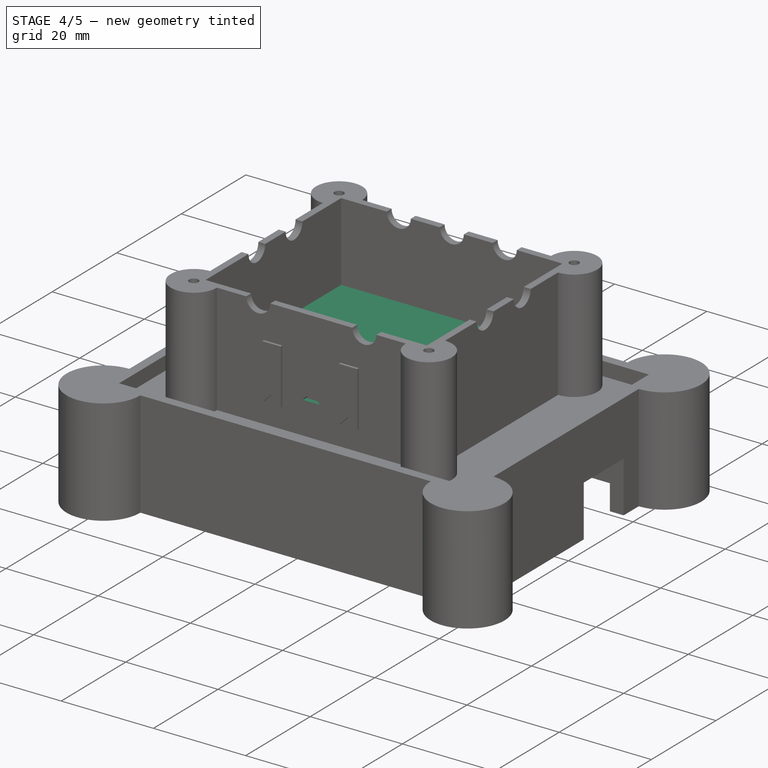
[diagram: stage 4 of 5 — iso view after this stage's code; geometry added in this stage tinted green]
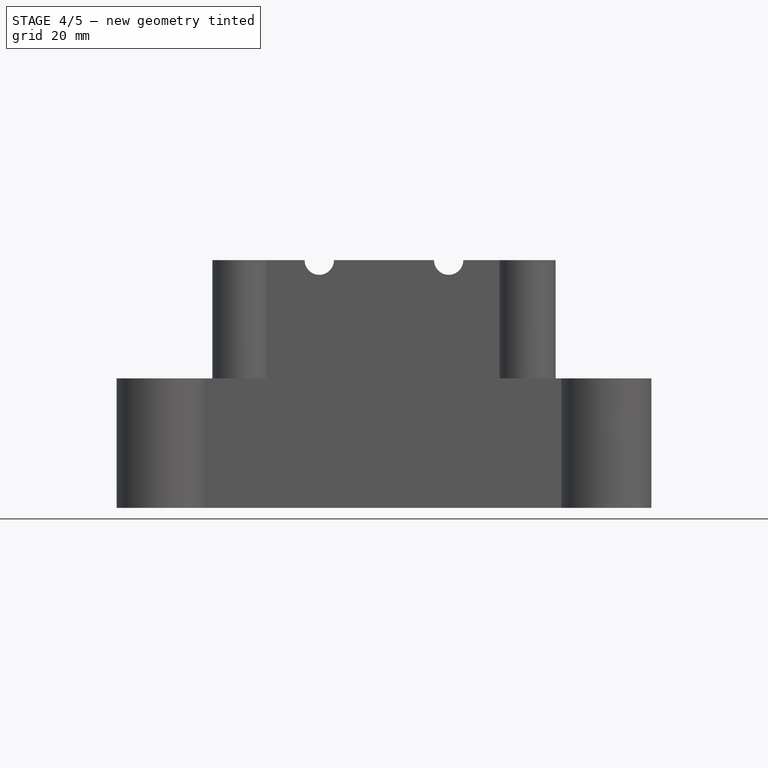
[diagram: stage 4 of 5 — front view after this stage's code; geometry added in this stage tinted green]
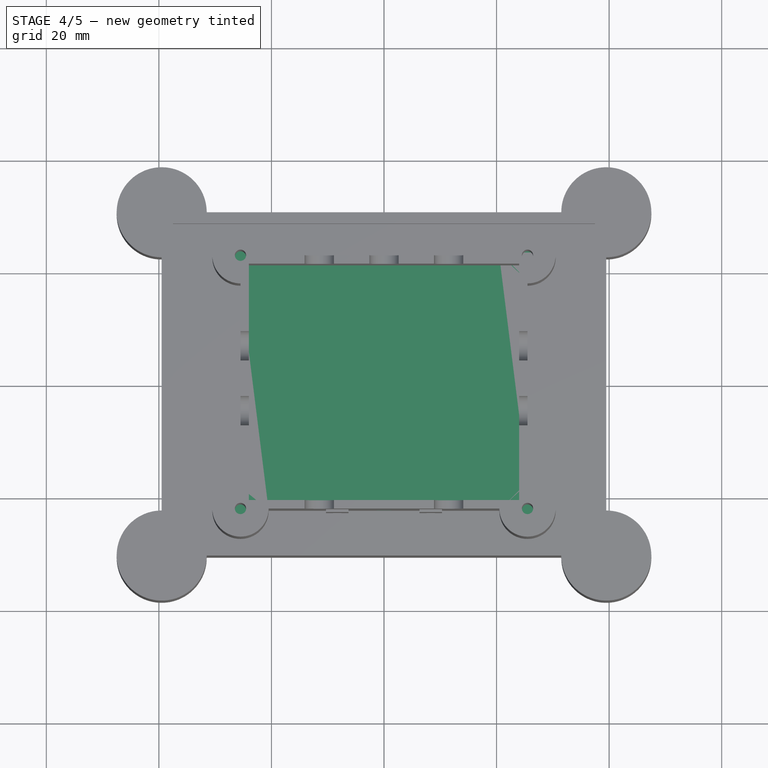
[diagram: stage 4 of 5 — top view after this stage's code; geometry added in this stage tinted green]
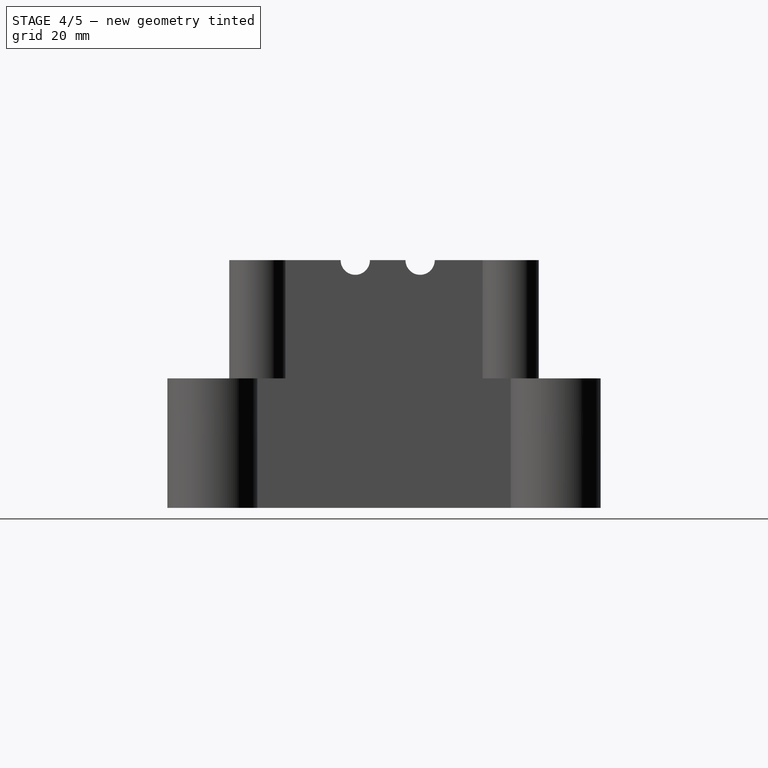
[diagram: stage 4 of 5 — right view after this stage's code; geometry added in this stage tinted green]
FEATURE [Sketcher::SketchObject] Sketch008
  FullyConstrained = true
  MapMode = 5
  Support = -> [XY_Plane005]
  sketch-geometry (8):
    g0: LineSegment StartX=-20.5 StartY=22.5 StartZ=0 EndX=20.5 EndY=22.5 EndZ=0
    g1: LineSegment StartX=25.5 StartY=17.5 StartZ=0 EndX=25.5 EndY=-17.5 EndZ=0
    g2: LineSegment StartX=20.5 StartY=-22.5 StartZ=0 EndX=-20.5 EndY=-22.5 EndZ=0
    g3: LineSegment StartX=-25.5 StartY=-17.5 StartZ=0 EndX=-25.5 EndY=17.5 EndZ=0
    g4: ArcOfCircle CenterX=25.5 CenterY=22.5 CenterZ=0 NormalX=0 NormalY=0 NormalZ=1 AngleXU=0 Radius=5 StartAngle=4.71239 EndAngle=9.42478
    g5: ArcOfCircle CenterX=-25.5 CenterY=22.5 CenterZ=0 NormalX=0 NormalY=0 NormalZ=1 AngleXU=0 Radius=5 StartAngle=1e-16 EndAngle=4.71239
    g6: ArcOfCircle CenterX=-25.5 CenterY=-22.5 CenterZ=0 NormalX=0 NormalY=0 NormalZ=1 AngleXU=0 Radius=5 StartAngle=1.5708 EndAngle=6.28319
    g7: ArcOfCircle CenterX=25.5 CenterY=-22.5 CenterZ=0 NormalX=0 NormalY=0 NormalZ=1 AngleXU=0 Radius=5 StartAngle=3.14159 EndAngle=7.85398
  constraints (27):
    c: Horizontal(g0)
    c: Horizontal(g2)
    c: Vertical(g1)
    c: Vertical(g3)
    c: DistanceX(g5,g4) = 51
    c: DistanceY(g6,g5) = 45
    c: Coincident(g1,g4)
    c: Coincident(g0,g4)
    c: Coincident(g5,g0)
    c: Coincident(g5,g3)
    c: Coincident(g3,g6)
    c: Coincident(g2,g6)
    c: Coincident(g7,g2)
    c: Coincident(g7,g1)
    c: Equal(g7,g4)
    c: Equal(g4,g5)
    c: Equal(g5,g6)
    c: Symmetric(g4,g6,g-1)
    c: Perpendicular(g4,g1)
    c: Perpendicular(g4,g0)
    c: Perpendicular(g5,g0)
    c: Perpendicular(g5,g3)
    c: Perpendicular(g6,g3)
    c: Perpendicular(g6,g2)
    c: Perpendicular(g7,g2)
    c: Perpendicular(g7,g1)
    c: Radius(g4) = 5
FEATURE [PartDesign::Pad] Pad003
  Direction = (1,1,1)
  Length = 10
  Length2 = 100
  Profile = -> Sketch008
  Type = 0
FEATURE [Sketcher::SketchObject] Sketch009
  FullyConstrained = true
  MapMode = 5
  Placement = pos=(0,0,0) rot=(1,0,0;3.14159rad)
  Support = -> [Pad003]
  sketch-geometry (4):
    g0: LineSegment StartX=24 StartY=21 StartZ=0 EndX=-24 EndY=21 EndZ=0
    g1: LineSegment StartX=-24 StartY=21 StartZ=0 EndX=-24 EndY=-21 EndZ=0
    g2: LineSegment StartX=-24 StartY=-21 StartZ=0 EndX=24 EndY=-21 EndZ=0
    g3: LineSegment StartX=24 StartY=-21 StartZ=0 EndX=24 EndY=21 EndZ=0
  constraints (11):
    c: Coincident(g0,g1)
    c: Coincident(g1,g2)
    c: Coincident(g2,g3)
    c: Coincident(g3,g0)
    c: Horizontal(g0)
    c: Horizontal(g2)
    c: Vertical(g1)
    c: Vertical(g3)
    c: Symmetric(g0,g1,g-1)
    c: DistanceX(g0,g0) = 48
    c: DistanceY(g1,g1) = 42
FEATURE [PartDesign::Pocket] Pocket005
  BaseFeature = -> Pad003
  Direction = (1,1,1)
  Length = 4.5
  Length2 = 100
  Profile = -> Sketch009
  Type = 0
FEATURE [Sketcher::SketchObject] Sketch010
  ExternalGeometry = -> [Pocket005]
  FullyConstrained = false
  MapMode = 5
  Placement = pos=(25.5,0,0) rot=(0.57735,0.57735,0.57735;2.0944rad)
  Support = -> [Pocket005]
  expr: Constraints[3] = <<parameters>>.SMA_HOLE_DIAMETER
  sketch-geometry (2):
    g0: Circle CenterX=6.40418 CenterY=0 CenterZ=0 NormalX=0 NormalY=0 NormalZ=1 AngleXU=0 Radius=2.6
    g1: Circle CenterX=-5.09241 CenterY=0 CenterZ=0 NormalX=0 NormalY=0 NormalZ=1 AngleXU=0 Radius=2.6
  constraints (4):
    c: PointOnObject(g0,g-3)
    c: PointOnObject(g1,g-3)
    c: Equal(g0,g1)
    c: Diameter(g1) = 5.2
FEATURE [PartDesign::Pocket] Pocket006
  BaseFeature = -> Pocket005
  Direction = (1,1,1)
  Length = 5
  Length2 = 100
  Profile = -> Sketch010
  Type = 1
FEATURE [Sketcher::SketchObject] Sketch011
  ExternalGeometry = -> [Pocket006]
  FullyConstrained = false
  MapMode = 5
  Placement = pos=(0,-22.5,0) rot=(1,0,0;1.5708rad)
  Support = -> [Pocket006]
  expr: Constraints[3] = <<parameters>>.SMA_HOLE_DIAMETER
  sketch-geometry (2):
    g0: Circle CenterX=11.4846 CenterY=0 CenterZ=0 NormalX=0 NormalY=0 NormalZ=1 AngleXU=0 Radius=2.6
    g1: Circle CenterX=-11.4541 CenterY=0 CenterZ=0 NormalX=0 NormalY=0 NormalZ=1 AngleXU=0 Radius=2.6
  constraints (4):
    c: PointOnObject(g0,g-3)
    c: PointOnObject(g1,g-3)
    c: Equal(g1,g0)
    c: Diameter(g1) = 5.2
FEATURE [PartDesign::Pocket] Pocket007
  BaseFeature = -> Pocket006
  Direction = (1,1,1)
  Length = 5
  Length2 = 100
  Profile = -> Sketch011
  Type = 1
FEATURE [Sketcher::SketchObject] Sketch012
  ExternalGeometry = -> [Pocket007]
  FullyConstrained = true
  MapMode = 5
  Placement = pos=(0,22.5,0) rot=(0,0.707107,0.707107;3.14159rad)
  Support = -> [Pocket007]
  expr: Constraints[1] = <<parameters>>.SMA_HOLE_DIAMETER
  sketch-geometry (1):
    g0: Circle CenterX=0 CenterY=0 CenterZ=0 NormalX=0 NormalY=0 NormalZ=1 AngleXU=0 Radius=2.6
  constraints (3):
    c: PointOnObject(g0,g-3)
    c: Diameter(g0) = 5.2
    c: PointOnObject(g0,g-2)
FEATURE [PartDesign::Pocket] Pocket008
  BaseFeature = -> Pocket007
  Direction = (1,1,1)
  Length = 5
  Length2 = 100
  Profile = -> Sketch012
  Type = 2
FEATURE [Sketcher::SketchObject] Sketch031
  ExternalGeometry = -> [Pocket016]
  FullyConstrained = true
  MapMode = 5
  Placement = pos=(0,0,-4) rot=(1,0,0;3.14159rad)
  Support = -> [Pocket016]
  expr: Constraints[7] = <<parameters>>.SCREW_HEAD_HOLE_DIAMETER
  sketch-geometry (4):
    g0: Circle CenterX=-39.5 CenterY=30.5 CenterZ=0 NormalX=0 NormalY=0 NormalZ=1 AngleXU=0 Radius=2
    g1: Circle CenterX=-39.5 CenterY=-30.5 CenterZ=0 NormalX=0 NormalY=0 NormalZ=1 AngleXU=0 Radius=2
    g2: Circle CenterX=39.5 CenterY=30.5 CenterZ=0 NormalX=0 NormalY=0 NormalZ=1 AngleXU=0 Radius=2
    g3: Circle CenterX=39.5 CenterY=-30.5 CenterZ=0 NormalX=0 NormalY=0 NormalZ=1 AngleXU=0 Radius=2
  constraints (8):
    c: Coincident(g0,g-4)
    c: Coincident(g1,g-5)
    c: Coincident(g2,g-3)
    c: Coincident(g3,g-6)
    c: Equal(g2,g3)
    c: Equal(g3,g0)
    c: Equal(g0,g1)
    c: Diameter(g2) = 4
FEATURE [PartDesign::Pocket] Pocket017
  BaseFeature = -> Pocket016
  Direction = (1,1,1)
  Length = 2
  Length2 = 100
  Profile = -> Sketch031
  Type = 0
  expr: Length = <<parameters>>.SCREW_HEAD_HOLE_DEPHT
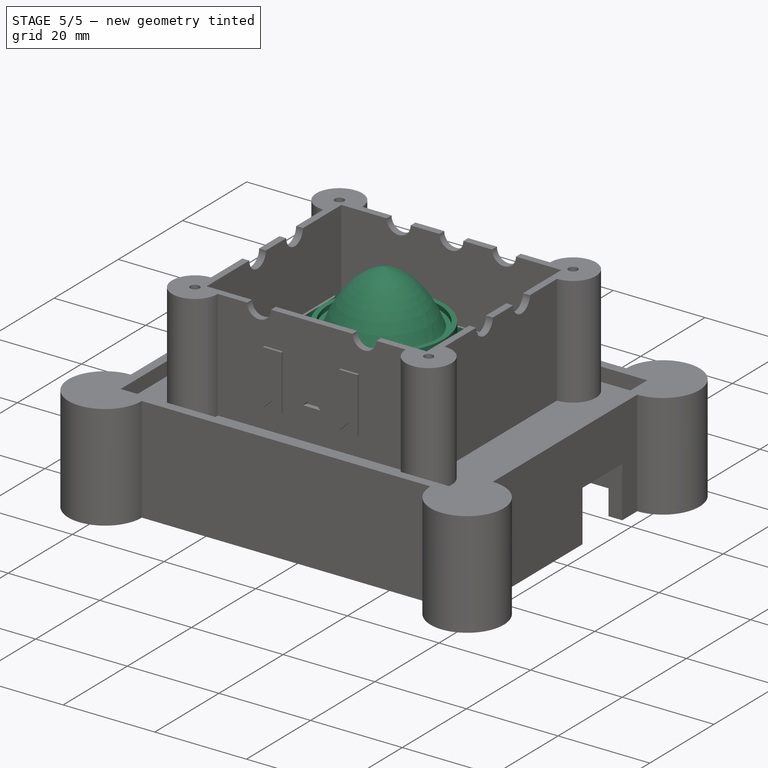
[diagram: stage 5 of 5 — iso view after this stage's code; geometry added in this stage tinted green]
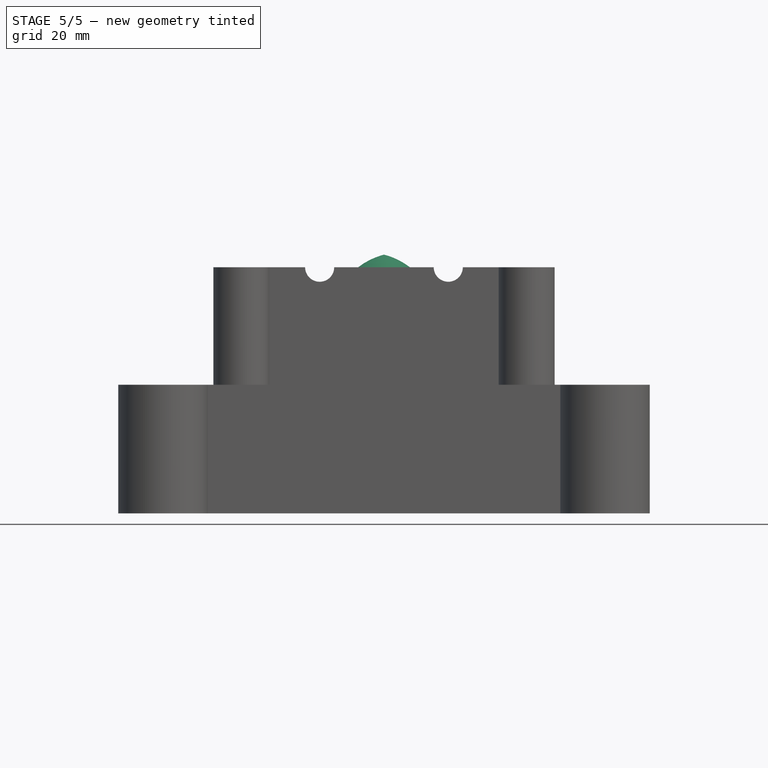
[diagram: stage 5 of 5 — front view after this stage's code; geometry added in this stage tinted green]
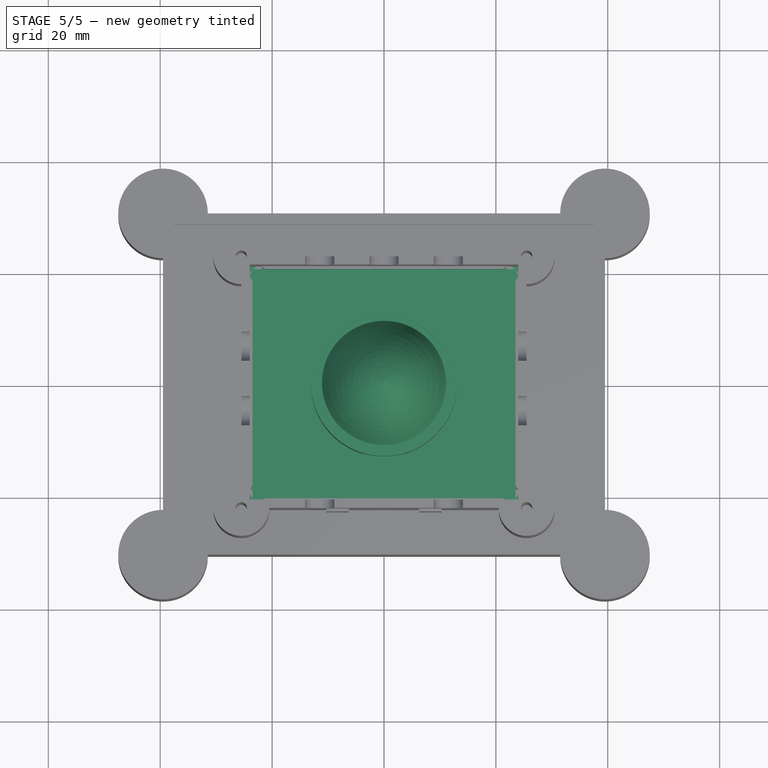
[diagram: stage 5 of 5 — top view after this stage's code; geometry added in this stage tinted green]
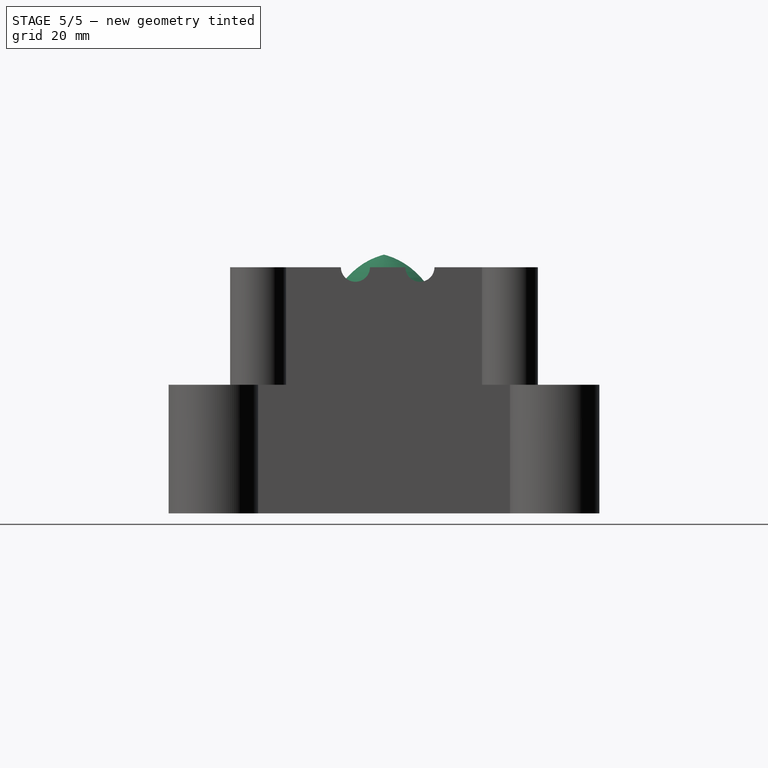
[diagram: stage 5 of 5 — right view after this stage's code; geometry added in this stage tinted green]
FEATURE [Sketcher::SketchObject] Sketch013
  FullyConstrained = true
  MapMode = 5
  Placement = pos=(0,0,10) rot=(0,0,1;0rad)
  Support = -> [Pocket008]
  expr: Constraints[15] = <<parameters>>.SCREW_HOLE_DIAMETER * 1.1
  sketch-geometry (8):
    g0: LineSegment StartX=25.5 StartY=22.5 StartZ=0 EndX=-25.5 EndY=22.5 EndZ=0
    g1: LineSegment StartX=-25.5 StartY=22.5 StartZ=0 EndX=-25.5 EndY=-22.5 EndZ=0
    g2: LineSegment StartX=-25.5 StartY=-22.5 StartZ=0 EndX=25.5 EndY=-22.5 EndZ=0
    g3: LineSegment StartX=25.5 StartY=-22.5 StartZ=0 EndX=25.5 EndY=22.5 EndZ=0
    g4: Circle CenterX=25.5 CenterY=22.5 CenterZ=0 NormalX=0 NormalY=0 NormalZ=1 AngleXU=0 Radius=1.1
    g5: Circle CenterX=-25.5 CenterY=22.5 CenterZ=0 NormalX=0 NormalY=0 NormalZ=1 AngleXU=0 Radius=1.1
    g6: Circle CenterX=-25.5 CenterY=-22.5 CenterZ=0 NormalX=0 NormalY=0 NormalZ=1 AngleXU=0 Radius=1.1
    g7: Circle CenterX=25.5 CenterY=-22.5 CenterZ=0 NormalX=0 NormalY=0 NormalZ=1 AngleXU=0 Radius=1.1
  constraints (19):
    c: Coincident(g0,g1)
    c: Coincident(g1,g2)
    c: Coincident(g2,g3)
    c: Coincident(g3,g0)
    c: Horizontal(g0)
    c: Horizontal(g2)
    c: Vertical(g1)
    c: Vertical(g3)
    c: Coincident(g4,g0)
    c: Coincident(g5,g0)
    c: Coincident(g6,g1)
    c: Coincident(g7,g2)
    c: Equal(g4,g5)
    c: Equal(g5,g6)
    c: Equal(g6,g7)
    c: Diameter(g4) = 2.2
    c: Symmetric(g4,g6,g-1)
    c: DistanceX(g0,g0) = 51
    c: DistanceY(g1,g1) = 45
FEATURE [PartDesign::Pocket] Pocket009
  BaseFeature = -> Pocket008
  Direction = (1,1,1)
  Length = 5
  Length2 = 100
  Profile = -> Sketch013
  Type = 1
FEATURE [Sketcher::SketchObject] Sketch015
  FullyConstrained = true
  MapMode = 5
  Placement = pos=(0,0,10) rot=(0,0,1;0rad)
  Support = -> [Pocket009]
  sketch-geometry (4):
    g0: LineSegment StartX=23.5 StartY=20.5 StartZ=0 EndX=-23.5 EndY=20.5 EndZ=0
    g1: LineSegment StartX=-23.5 StartY=20.5 StartZ=0 EndX=-23.5 EndY=-20.5 EndZ=0
    g2: LineSegment StartX=-23.5 StartY=-20.5 StartZ=0 EndX=23.5 EndY=-20.5 EndZ=0
    g3: LineSegment StartX=23.5 StartY=-20.5 StartZ=0 EndX=23.5 EndY=20.5 EndZ=0
  constraints (11):
    c: Coincident(g0,g1)
    c: Coincident(g1,g2)
    c: Coincident(g2,g3)
    c: Coincident(g3,g0)
    c: Horizontal(g0)
    c: Horizontal(g2)
    c: Vertical(g1)
    c: Vertical(g3)
    c: Symmetric(g0,g1,g-1)
    c: DistanceX(g0,g0) = 47
    c: DistanceY(g1,g1) = 41
FEATURE [PartDesign::Pocket] Pocket011
  BaseFeature = -> Pocket009
  Direction = (1,1,1)
  Length = 0
  Length2 = 100
  Offset = -2
  Profile = -> Sketch015
  Type = 2
FEATURE [Sketcher::SketchObject] Sketch016
  ExternalGeometry = -> [Pocket011]
  FullyConstrained = true
  MapMode = 5
  Placement = pos=(0,0,10) rot=(0,0,1;0rad)
  Support = -> [Pocket011]
  sketch-geometry (12):
    g0: ArcOfCircle CenterX=25.5 CenterY=22.5 CenterZ=0 NormalX=0 NormalY=0 NormalZ=1 AngleXU=0 Radius=3.5 StartAngle=4.71239 EndAngle=9.42478
    g1: ArcOfCircle CenterX=-25.5 CenterY=22.5 CenterZ=0 NormalX=0 NormalY=0 NormalZ=1 AngleXU=0 Radius=3.5 StartAngle=0 EndAngle=4.71239
    g2: ArcOfCircle CenterX=-25.5 CenterY=-22.5 CenterZ=0 NormalX=0 NormalY=0 NormalZ=1 AngleXU=0 Radius=3.5 StartAngle=1.5708 EndAngle=6.28319
    g3: ArcOfCircle CenterX=25.5 CenterY=-22.5 CenterZ=0 NormalX=0 NormalY=0 NormalZ=1 AngleXU=0 Radius=3.5 StartAngle=3.14159 EndAngle=7.85398
    g4: LineSegment StartX=-22 StartY=22.5 StartZ=0 EndX=-22 EndY=19 EndZ=0
    g5: LineSegment StartX=-22 StartY=19 StartZ=0 EndX=-25.5 EndY=19 EndZ=0
    g6: LineSegment StartX=22 StartY=22.5 StartZ=0 EndX=22 EndY=19 EndZ=0
    g7: LineSegment StartX=22 StartY=19 StartZ=0 EndX=25.5 EndY=19 EndZ=0
    g8: LineSegment StartX=25.5 StartY=-19 StartZ=0 EndX=22 EndY=-19 EndZ=0
    g9: LineSegment StartX=22 StartY=-19 StartZ=0 EndX=22 EndY=-22.5 EndZ=0
    g10: LineSegment StartX=-22 StartY=-22.5 StartZ=0 EndX=-22 EndY=-19 EndZ=0
    g11: LineSegment StartX=-22 StartY=-19 StartZ=0 EndX=-25.5 EndY=-19 EndZ=0
  constraints (28):
    c: Coincident(g0,g-3)
    c: Coincident(g1,g-4)
    c: Coincident(g2,g-5)
    c: Coincident(g3,g-6)
    c: Equal(g0,g3)
    c: Equal(g3,g1)
    c: Equal(g1,g2)
    c: Radius(g0) = 3.5
    c: Vertical(g4)
    c: Coincident(g5,g4)
    c: Horizontal(g5)
    c: Tangent(g1,g5) = 1.5708
    c: Tangent(g1,g4) = 1.5708
    c: Vertical(g6)
    c: Coincident(g7,g6)
    c: Horizontal(g8)
    c: Coincident(g9,g8)
    c: Coincident(g11,g10)
    c: Vertical(g10)
    c: Horizontal(g11)
    c: Tangent(g2,g10) = -1.5708
    c: Tangent(g3,g9) = -1.5708
    c: Tangent(g3,g8) = -1.5708
    c: Tangent(g0,g7) = -1.5708
    c: Horizontal(g7)
    c: Tangent(g0,g6) = -1.5708
    c: Tangent(g2,g11) = -1.5708
    c: Vertical(g9)
FEATURE [PartDesign::Pocket] Pocket012
  BaseFeature = -> Pocket011
  Direction = (1,1,1)
  Length = 5
  Length2 = 100
  Profile = -> Sketch016
  Type = 2
FEATURE [Sketcher::SketchObject] Sketch020
  FullyConstrained = false
  MapMode = 5
  Placement = pos=(0,0,6.5) rot=(0,0,1;0rad)
  Support = -> [Pocket012]
  sketch-geometry (1):
    g0: Circle CenterX=0 CenterY=0 CenterZ=0 NormalX=0 NormalY=0 NormalZ=1 AngleXU=0 Radius=13.0866
  constraints (1):
    c: Coincident(g0,g-1)
FEATURE [PartDesign::Pad] Pad005
  BaseFeature = -> Pocket012
  Direction = (1,1,1)
  Length = 10
  Length2 = 100
  Profile = -> Sketch020
  Type = 0
FEATURE [Sketcher::SketchObject] Sketch021
  ExternalGeometry = -> [Pad005]
  FullyConstrained = false
  MapMode = 5
  Placement = pos=(0,0,0) rot=(1,0,0;1.5708rad)
  Support = -> [XZ_Plane005]
  sketch-geometry (6):
    g0: LineSegment StartX=4.0227 StartY=6.5 StartZ=0 EndX=-4.0227 EndY=6.5 EndZ=0
    g1: LineSegment StartX=-4.0227 StartY=6.5 StartZ=0 EndX=-4.0227 EndY=9.62634 EndZ=0
    g2: LineSegment StartX=4.0227 StartY=9.62634 StartZ=0 EndX=4.0227 EndY=6.5 EndZ=0
    g3: GeomPoint X=0 Y=9.62634 Z=0
    g4: ArcOfCircle CenterX=-2.19416 CenterY=8.52946 CenterZ=0 NormalX=0 NormalY=0 NormalZ=1 AngleXU=0 Radius=6.31288 StartAngle=0.174639 EndAngle=1.21582
    g5: ArcOfCircle CenterX=2.19416 CenterY=8.52946 CenterZ=0 NormalX=0 NormalY=0 NormalZ=1 AngleXU=0 Radius=6.31288 StartAngle=1.92577 EndAngle=2.96695
  constraints (14):
    c: Coincident(g0,g1)
    c: Coincident(g2,g0)
    c: Horizontal(g0)
    c: Vertical(g1)
    c: Vertical(g2)
    c: PointOnObject(g0,g-3)
    c: Horizontal(g2,g1)
    c: PointOnObject(g3,g-2)
    c: Symmetric(g2,g1,g3)
    c: Coincident(g4,g2)
    c: PointOnObject(g4,g-2)
    c: Coincident(g5,g1)
    c: Coincident(g5,g4)
    c: Equal(g5,g4)
FEATURE [PartDesign::Pocket] Pocket014
  BaseFeature = -> Pad005
  Direction = (1,1,1)
  Length = 5
  Length2 = 100
  Profile = -> Sketch021
  Reversed = true
  Type = 2
FEATURE [Sketcher::SketchObject] Sketch023
  ExternalGeometry = -> [Pocket014]
  FullyConstrained = false
  MapMode = 5
  Placement = pos=(0,0,0) rot=(1,0,0;1.5708rad)
  Support = -> [XZ_Plane005]
  sketch-geometry (12):
    g0: LineSegment StartX=11.0866 StartY=17.5 StartZ=0 EndX=12.0866 EndY=17.5 EndZ=0
    g1: LineSegment StartX=12.0866 StartY=17.5 StartZ=0 EndX=12.0866 EndY=18.5 EndZ=0
    g2: LineSegment StartX=12.0866 StartY=18.5 StartZ=0 EndX=13.0866 EndY=18.5 EndZ=0
    g3: LineSegment StartX=13.0866 StartY=18.5 StartZ=0 EndX=13.0866 EndY=16.5 EndZ=0
    g4: LineSegment StartX=13.0866 StartY=16.5 StartZ=0 EndX=0 EndY=16.5 EndZ=0
    g5: LineSegment StartX=0 StartY=16.5 StartZ=0 EndX=0 EndY=29.2497 EndZ=0
    g6: Circle CenterX=11.0866 CenterY=17.5 CenterZ=0 NormalX=0 NormalY=0 NormalZ=1 AngleXU=0 Radius=1
    g7: Circle CenterX=7.28625 CenterY=27.3717 CenterZ=0 NormalX=0 NormalY=0 NormalZ=1 AngleXU=0 Radius=1
    g8: Circle CenterX=0 CenterY=29.2497 CenterZ=0 NormalX=0 NormalY=0 NormalZ=1 AngleXU=0 Radius=1
    g9: BSplineCurve PolesCount=3 KnotsCount=2 Degree=2 IsPeriodic=0
    g10: GeomPoint X=11.0866 Y=17.5 Z=0
    g11: GeomPoint X=0 Y=29.2497 Z=0
  constraints (27):
    c: PointOnObject(g5,g-2)
    c: Horizontal(g0)
    c: Coincident(g0,g1)
    c: Vertical(g1)
    c: Coincident(g1,g2)
    c: Horizontal(g2)
    c: Coincident(g2,g3)
    c: Coincident(g3,g-3)
    c: Vertical(g3)
    c: Coincident(g3,g4)
    c: PointOnObject(g4,g-3)
    c: Coincident(g4,g5)
    c: Vertical(g5)
    c: DistanceX(g0,g0) = 1
    c: DistanceX(g2,g2) = 1
    c: DistanceY(g1,g1) = 1
    c: DistanceY(g3,g0) = 1
    c: Coincident(g9,g0)
    c: Weight(g6) = 1
    c: Equal(g6,g7)
    c: Equal(g6,g8)
    c: Coincident(g9,g5)
    c: InternalAlignment(g6,g9)
    c: InternalAlignment(g7,g9)
    c: InternalAlignment(g8,g9)
    c: InternalAlignment(g10,g9)
    c: InternalAlignment(g11,g9)
FEATURE [PartDesign::Revolution] Revolution
  Angle = 360
  Axis = (0,-2e-16,1)
  Base = (0,0,0)
  BaseFeature = -> Pocket014
  Profile = -> Sketch023
  ReferenceAxis = -> Sketch023 [V_Axis]
FEATURE [PartDesign::Fillet] Fillet
  Base = -> Revolution [Edge111,Edge126,Edge115,Edge128,Edge116,Edge112,Edge100,Edge99]
  BaseFeature = -> Revolution
  Radius = 1
  SupportTransform = false
  UseAllEdges = false
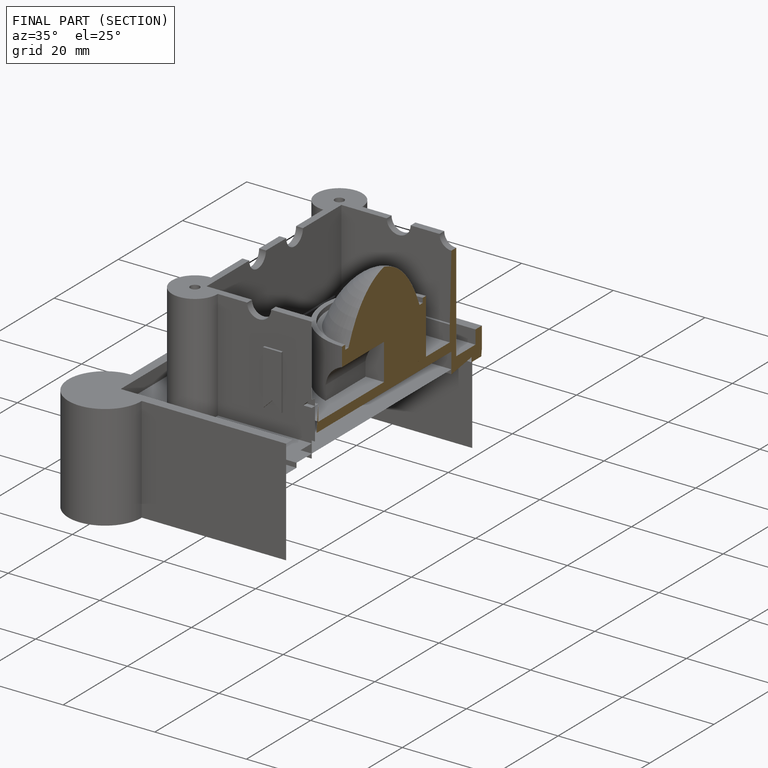
[diagram: finished part — half-section view (interior)]
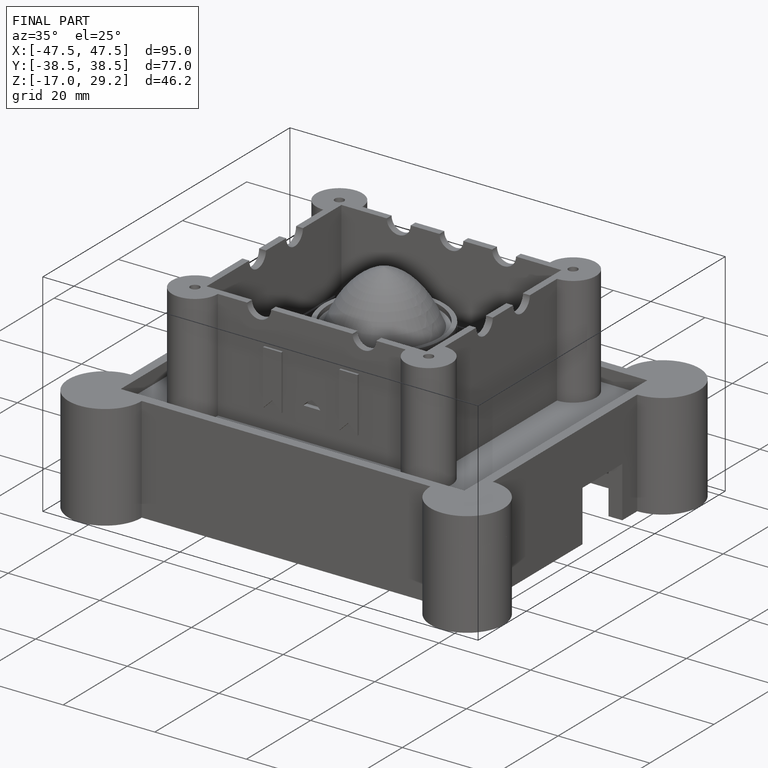
[diagram: finished part — iso view with bounding-box wireframe]
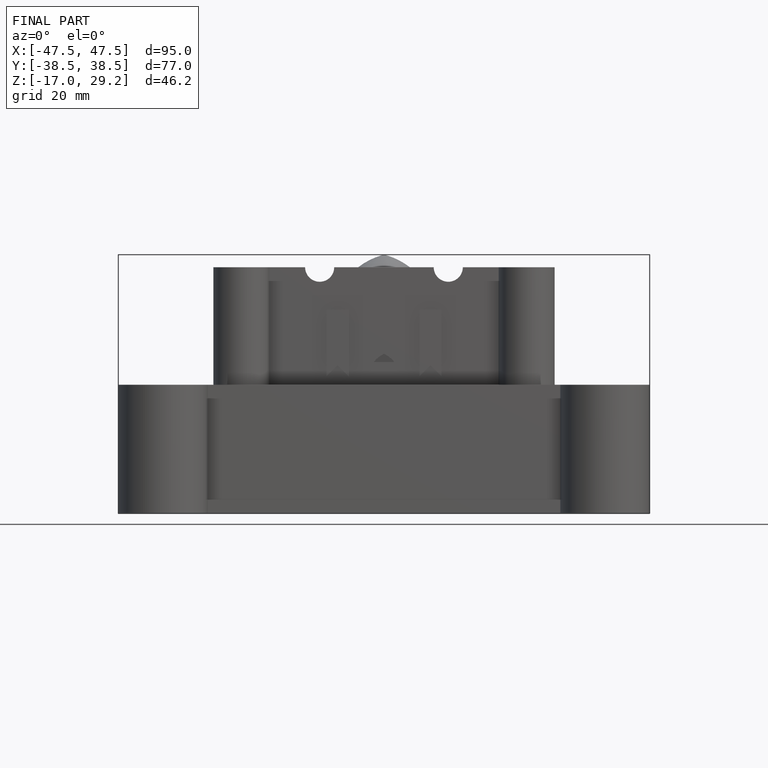
[diagram: finished part — front view with bounding-box wireframe]
